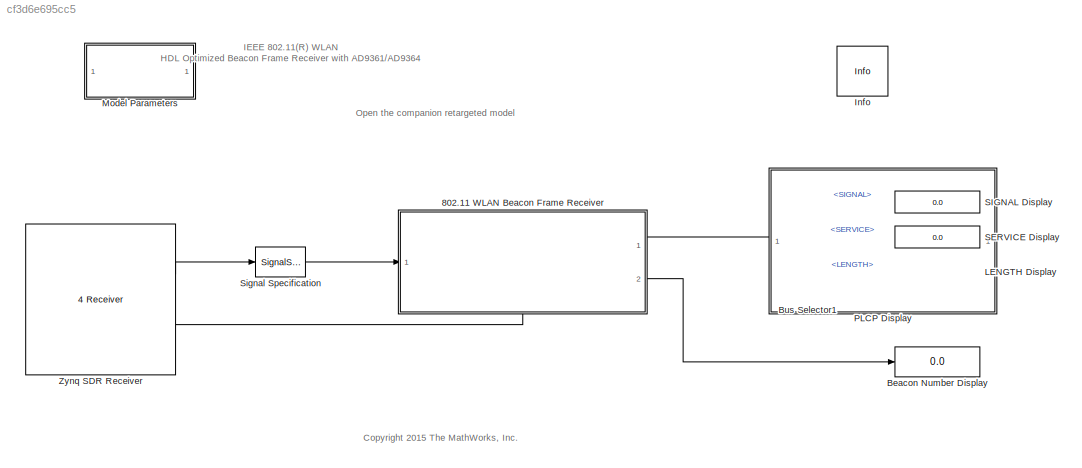
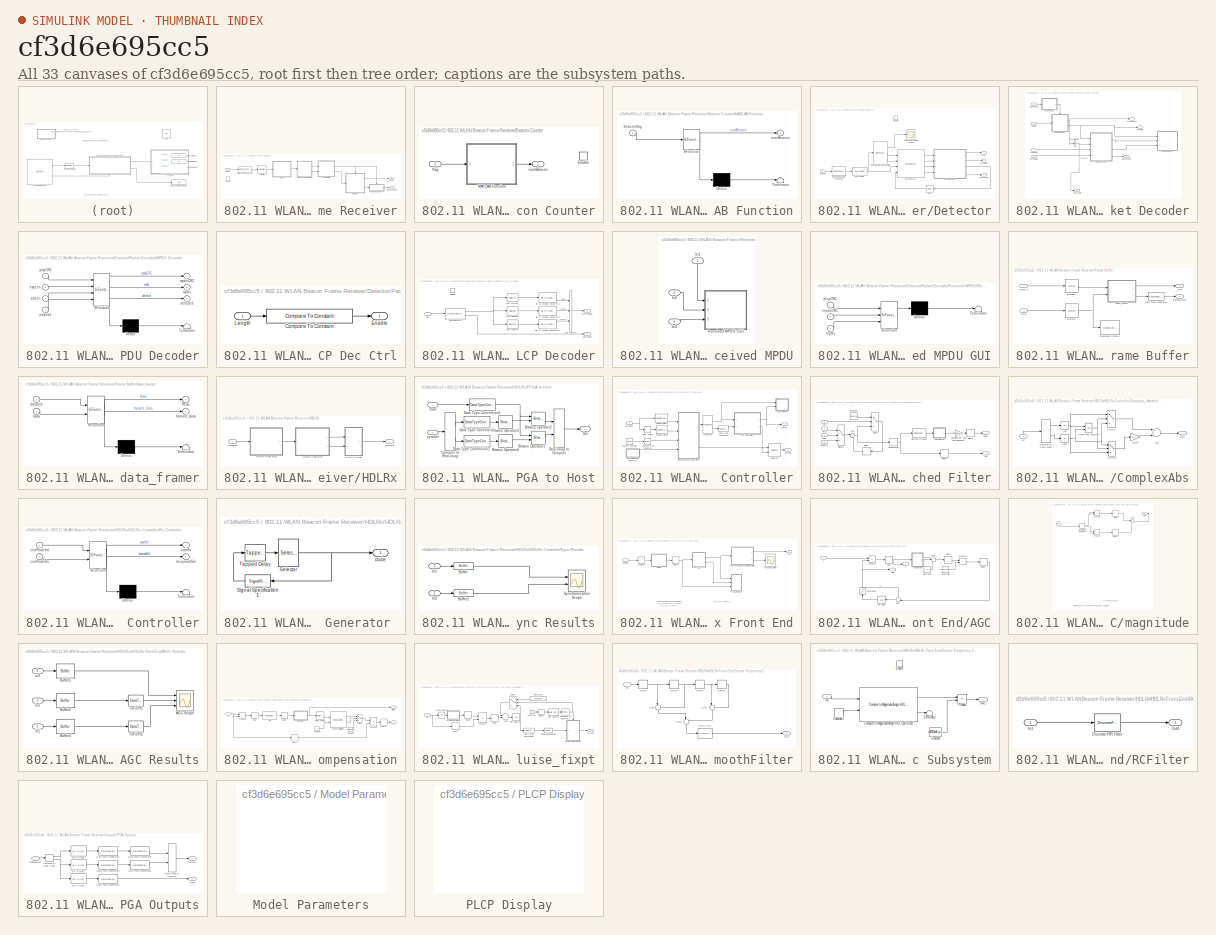
[diagram: thumbnail index - all 33 canvases of the model, root first then tree order]
MODEL slx_cf3d6e695cc5
KIND model
CONFIG AbsTol = auto
CONFIG FixedStep = auto
CONFIG InitFcn = load('commwlan80211BusTypes')\nopenMPDUGUI = true;\nmpduFigPos= [ 100 100 400 500];
CONFIG MaxStep = auto
CONFIG MinStep = auto
CONFIG PostLoadFcn = zynqRadioWLAN80211BeaconRxFPGAAD9361AD9364SL_params('init')\nzynqRadioWLAN80211BeaconRxFPGAAD9361AD9364SL_params('scope')\n
CONFIG PreLoadFcn = load('commwlan80211BusTypes')\nopenMPDUGUI = true;\n
CONFIG RelTol = 1e-3
CONFIG SampleTimeConstraint = Unconstrained
CONFIG Solver = FixedStepDiscrete
CONFIG SolverMode = SingleTasking
CONFIG SolverName = FixedStepDiscrete
CONFIG StartTime = 0.0
CONFIG StopTime = 0.008
WORKSPACE source: external: MAT-File  (data not in archive)
BLOCK [SubSystem] 802.11 WLAN Beacon Frame Receiver
  Ports = [1, 2, 1]
  RequestExecContextInheritance = off
  Variant = off
BLOCK [SubSystem] 802.11 WLAN Beacon Frame Receiver/Beacon Counter
  Ports = [1, 1, 1]
  RequestExecContextInheritance = off
  Variant = off
BLOCK [EnablePort] 802.11 WLAN Beacon Frame Receiver/Beacon Counter/Enable
  Ports = []
BLOCK [SubSystem] 802.11 WLAN Beacon Frame Receiver/Beacon Counter/MATLAB Function
  ErrorFcn = Stateflow.Translate.translate
  PermitHierarchicalResolution = ExplicitOnly
  Ports = [1, 1]
  RequestExecContextInheritance = off
  SFBlockType = MATLAB Function
  TreatAsAtomicUnit = on
  Variant = off
BLOCK [Demux] 802.11 WLAN Beacon Frame Receiver/Beacon Counter/MATLAB Function/ Demux 
  Outputs = 1
  Ports = [1, 1]
BLOCK [S-Function] 802.11 WLAN Beacon Frame Receiver/Beacon Counter/MATLAB Function/ SFunction 
  EnableBusSupport = off
  FunctionName = sf_sfun
  PortCounts = [1 2]
  Ports = [1, 2]
  SFunctionDeploymentMode = off
  Tag = Stateflow S-Function zynqRadioWLAN80211BeaconRxFPGAAD9361AD9364SL 6
BLOCK [Terminator] 802.11 WLAN Beacon Frame Receiver/Beacon Counter/MATLAB Function/ Terminator 
BLOCK [Inport] 802.11 WLAN Beacon Frame Receiver/Beacon Counter/MATLAB Function/beaconflag
  IconDisplay = Port number
BLOCK [Outport] 802.11 WLAN Beacon Frame Receiver/Beacon Counter/MATLAB Function/numBeacon
  IconDisplay = Port number
BLOCK [Inport] 802.11 WLAN Beacon Frame Receiver/Beacon Counter/flag
  IconDisplay = Port number
BLOCK [Outport] 802.11 WLAN Beacon Frame Receiver/Beacon Counter/numBeacon
  IconDisplay = Port number
BLOCK [Outport] 802.11 WLAN Beacon Frame Receiver/BeaconCount
  IconDisplay = Port number
  Port = 2
BLOCK [DataTypeConversion] 802.11 WLAN Beacon Frame Receiver/Data Type Conversion
  ConvertRealWorld = Stored Integer (SI)
  OutDataTypeStr = fixdt(1,16,15)
  RndMeth = Floor
  SaturateOnIntegerOverflow = off
BLOCK [Inport] 802.11 WLAN Beacon Frame Receiver/DataIn
  IconDisplay = Port number
BLOCK [SubSystem] 802.11 WLAN Beacon Frame Receiver/Detector
  CloseFcn = clear BeaconFrameBodyType rcvd
  Ports = [1, 2, 1]
  RequestExecContextInheritance = off
  Variant = off
BLOCK [Outport] 802.11 WLAN Beacon Frame Receiver/Detector/Beacon Flag
  IconDisplay = Port number
  InitialOutput = 1
  Port = 2
BLOCK [Reference] 802.11 WLAN Beacon Frame Receiver/Detector/DBPSK Demodulator Baseband  REF=commdigbbndpm3/DBPSK
Demodulator
Baseband
  Ports = [1, 1]
  SourceBlock = commdigbbndpm3/DBPSK\nDemodulator\nBaseband
  SourceType = DBPSK Demodulator Baseband
BLOCK [Delay] 802.11 WLAN Beacon Frame Receiver/Detector/Delay
  DelayLength = 1
  InitialCondition = 0
  InputPortMap = u0
  InputProcessing = Columns as channels (frame based)
  Ports = [1, 1]
  UserDataPersistent = on
BLOCK [Reference] 802.11 WLAN Beacon Frame Receiver/Detector/Descrambler  REF=commsequence2/Descrambler
  Ports = [1, 1]
  SourceBlock = commsequence2/Descrambler
  SourceType = Descrambler
BLOCK [EnablePort] 802.11 WLAN Beacon Frame Receiver/Detector/Enable
  Ports = []
  PropagateVarSize = During execution
  StatesWhenEnabling = reset
BLOCK [Reference] 802.11 WLAN Beacon Frame Receiver/Detector/Fine Packet Synchronization  REF=commwlan80211BeaconLib/Fine Packet
Synchronization
  Ports = [1, 3]
  SourceBlock = commwlan80211BeaconLib/Fine Packet\nSynchronization
  SourceType = SubSystem
BLOCK [Outport] 802.11 WLAN Beacon Frame Receiver/Detector/PLCP
  IconDisplay = Port number
BLOCK [SubSystem] 802.11 WLAN Beacon Frame Receiver/Detector/Packet Decoder
  Ports = [4, 4]
  RequestExecContextInheritance = off
  Variant = off
BLOCK [Outport] 802.11 WLAN Beacon Frame Receiver/Detector/Packet Decoder/BeaconFlag
  IconDisplay = Port number
  Port = 4
BLOCK [BusSelector] 802.11 WLAN Beacon Frame Receiver/Detector/Packet Decoder/Bus Selector
  OutputSignals = LENGTH
  Ports = [1, 1]
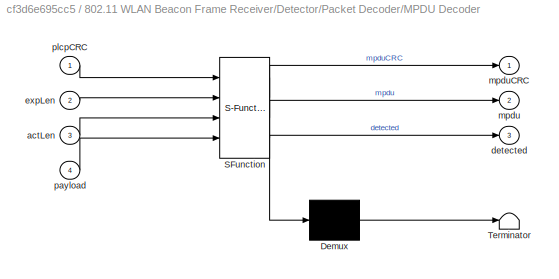
BLOCK [SubSystem] 802.11 WLAN Beacon Frame Receiver/Detector/Packet Decoder/MPDU Decoder
  ErrorFcn = Stateflow.Translate.translate
  PermitHierarchicalResolution = ExplicitOnly
  Ports = [4, 3]
  RequestExecContextInheritance = off
  SFBlockType = MATLAB Function
  TreatAsAtomicUnit = on
  Variant = off
BLOCK [Demux] 802.11 WLAN Beacon Frame Receiver/Detector/Packet Decoder/MPDU Decoder/ Demux 
  Outputs = 1
  Ports = [1, 1]
BLOCK [S-Function] 802.11 WLAN Beacon Frame Receiver/Detector/Packet Decoder/MPDU Decoder/ SFunction 
  EnableBusSupport = off
  FunctionName = sf_sfun
  PortCounts = [4 4]
  Ports = [4, 4]
  SFunctionDeploymentMode = off
  Tag = Stateflow S-Function zynqRadioWLAN80211BeaconRxFPGAAD9361AD9364SL 1
BLOCK [Terminator] 802.11 WLAN Beacon Frame Receiver/Detector/Packet Decoder/MPDU Decoder/ Terminator 
BLOCK [Inport] 802.11 WLAN Beacon Frame Receiver/Detector/Packet Decoder/MPDU Decoder/actLen
  IconDisplay = Port number
  Port = 3
BLOCK [Outport] 802.11 WLAN Beacon Frame Receiver/Detector/Packet Decoder/MPDU Decoder/detected
  IconDisplay = Port number
  Port = 3
BLOCK [Inport] 802.11 WLAN Beacon Frame Receiver/Detector/Packet Decoder/MPDU Decoder/expLen
  IconDisplay = Port number
  Port = 2
BLOCK [Outport] 802.11 WLAN Beacon Frame Receiver/Detector/Packet Decoder/MPDU Decoder/mpdu
  IconDisplay = Port number
  Port = 2
BLOCK [Outport] 802.11 WLAN Beacon Frame Receiver/Detector/Packet Decoder/MPDU Decoder/mpduCRC
  IconDisplay = Port number
BLOCK [Inport] 802.11 WLAN Beacon Frame Receiver/Detector/Packet Decoder/MPDU Decoder/payload
  IconDisplay = Port number
  Port = 4
BLOCK [Inport] 802.11 WLAN Beacon Frame Receiver/Detector/Packet Decoder/MPDU Decoder/plcpCRC
  IconDisplay = Port number
BLOCK [Outport] 802.11 WLAN Beacon Frame Receiver/Detector/Packet Decoder/PLCP CRC
  IconDisplay = Port number
  Port = 2
BLOCK [SubSystem] 802.11 WLAN Beacon Frame Receiver/Detector/Packet Decoder/PLCP Dec Ctrl
  Ports = [1, 1]
  RequestExecContextInheritance = off
  Variant = off
BLOCK [Reference] 802.11 WLAN Beacon Frame Receiver/Detector/Packet Decoder/PLCP Dec Ctrl/Compare To Constant  REF=simulink/Logic and Bit
Operations/Compare
To Constant
  Ports = [1, 1]
  SourceBlock = simulink/Logic and Bit\nOperations/Compare\nTo Constant
  SourceType = Compare To Constant
BLOCK [Outport] 802.11 WLAN Beacon Frame Receiver/Detector/Packet Decoder/PLCP Dec Ctrl/Enable
  IconDisplay = Port number
BLOCK [Inport] 802.11 WLAN Beacon Frame Receiver/Detector/Packet Decoder/PLCP Dec Ctrl/Length
  IconDisplay = Port number
BLOCK [SubSystem] 802.11 WLAN Beacon Frame Receiver/Detector/Packet Decoder/PLCP Decoder
  Ports = [1, 2, 0, 1]
  RequestExecContextInheritance = off
  Variant = off
BLOCK [Reference] 802.11 WLAN Beacon Frame Receiver/Detector/Packet Decoder/PLCP Decoder/Bit to Integer Converter1  REF=commutil2/Bit to Integer
Converter
  Ports = [1, 1]
  SourceBlock = commutil2/Bit to Integer\nConverter
  SourceType = Bit to Integer Converter
BLOCK [Reference] 802.11 WLAN Beacon Frame Receiver/Detector/Packet Decoder/PLCP Decoder/Bit to Integer Converter2  REF=commutil2/Bit to Integer
Converter
  Ports = [1, 1]
  SourceBlock = commutil2/Bit to Integer\nConverter
  SourceType = Bit to Integer Converter
BLOCK [Reference] 802.11 WLAN Beacon Frame Receiver/Detector/Packet Decoder/PLCP Decoder/Bit to Integer Converter3  REF=commutil2/Bit to Integer
Converter
  Ports = [1, 1]
  SourceBlock = commutil2/Bit to Integer\nConverter
  SourceType = Bit to Integer Converter
BLOCK [Inport] 802.11 WLAN Beacon Frame Receiver/Detector/Packet Decoder/PLCP Decoder/Bits
  IconDisplay = Port number
BLOCK [BusCreator] 802.11 WLAN Beacon Frame Receiver/Detector/Packet Decoder/PLCP Decoder/Bus Creator
  DisplayOption = bar
  InheritFromInputs = on
  Inputs = 3
  Ports = [3, 1]
BLOCK [Outport] 802.11 WLAN Beacon Frame Receiver/Detector/Packet Decoder/PLCP Decoder/CRC Check
  IconDisplay = Port number
  Port = 2
BLOCK [Reference] 802.11 WLAN Beacon Frame Receiver/Detector/Packet Decoder/PLCP Decoder/CRC Detector  REF=commcrc2/General CRC
Syndrome
Detector
  Ports = [1, 2]
  SourceBlock = commcrc2/General CRC\nSyndrome\nDetector
  SourceType = General CRC Syndrome Detector
BLOCK [Selector] 802.11 WLAN Beacon Frame Receiver/Detector/Packet Decoder/PLCP Decoder/Get LENGTH
  IndexOptions = Index vector (dialog)
  Indices = 17:32
  InputPortWidth = 32
  OutputSizes = 1
  Ports = [1, 1]
BLOCK [Selector] 802.11 WLAN Beacon Frame Receiver/Detector/Packet Decoder/PLCP Decoder/Get SERVICE
  IndexOptions = Index vector (dialog)
  Indices = 9:16
  InputPortWidth = 32
  OutputSizes = 1
  Ports = [1, 1]
BLOCK [Selector] 802.11 WLAN Beacon Frame Receiver/Detector/Packet Decoder/PLCP Decoder/Get SIGNAL
  IndexOptions = Index vector (dialog)
  Indices = 1:8
  InputPortWidth = 32
  OutputSizes = 1
  Ports = [1, 1]
BLOCK [Outport] 802.11 WLAN Beacon Frame Receiver/Detector/Packet Decoder/PLCP Decoder/PLCP Header
  IconDisplay = Port number
BLOCK [TriggerPort] 802.11 WLAN Beacon Frame Receiver/Detector/Packet Decoder/PLCP Decoder/Trigger
  PortDimensions = 1
  Ports = []
  StatesWhenEnabling = held
  VariantControl = Variant
BLOCK [Outport] 802.11 WLAN Beacon Frame Receiver/Detector/Packet Decoder/PLCP Header
  IconDisplay = Port number
BLOCK [SubSystem] 802.11 WLAN Beacon Frame Receiver/Detector/Packet Decoder/Received MPDU
  Ports = [3]
  RequestExecContextInheritance = off
  Variant = off
BLOCK [Inport] 802.11 WLAN Beacon Frame Receiver/Detector/Packet Decoder/Received MPDU/In1
  IconDisplay = Port number
BLOCK [Inport] 802.11 WLAN Beacon Frame Receiver/Detector/Packet Decoder/Received MPDU/In2
  IconDisplay = Port number
  Port = 2
BLOCK [Inport] 802.11 WLAN Beacon Frame Receiver/Detector/Packet Decoder/Received MPDU/In3
  IconDisplay = Port number
  Port = 3
BLOCK [SubSystem] 802.11 WLAN Beacon Frame Receiver/Detector/Packet Decoder/Received MPDU/Received MPDU GUI
  ErrorFcn = Stateflow.Translate.translate
  PermitHierarchicalResolution = ExplicitOnly
  Ports = [3]
  RequestExecContextInheritance = off
  SFBlockType = MATLAB Function
  TreatAsAtomicUnit = on
  Variant = off
BLOCK [Demux] 802.11 WLAN Beacon Frame Receiver/Detector/Packet Decoder/Received MPDU/Received MPDU GUI/ Demux 
  Outputs = 1
  Ports = [1, 1]
BLOCK [S-Function] 802.11 WLAN Beacon Frame Receiver/Detector/Packet Decoder/Received MPDU/Received MPDU GUI/ SFunction 
  EnableBusSupport = off
  FunctionName = sf_sfun
  Parameters = OpenScopeAtSimStart,figPosition
  PortCounts = [3 1]
  Ports = [3, 1]
  SFunctionDeploymentMode = off
  Tag = Stateflow S-Function zynqRadioWLAN80211BeaconRxFPGAAD9361AD9364SL 2
BLOCK [Terminator] 802.11 WLAN Beacon Frame Receiver/Detector/Packet Decoder/Received MPDU/Received MPDU GUI/ Terminator 
BLOCK [Inport] 802.11 WLAN Beacon Frame Receiver/Detector/Packet Decoder/Received MPDU/Received MPDU GUI/mpdu
  IconDisplay = Port number
  Port = 3
BLOCK [Inport] 802.11 WLAN Beacon Frame Receiver/Detector/Packet Decoder/Received MPDU/Received MPDU GUI/mpduCRC
  IconDisplay = Port number
  Port = 2
BLOCK [Inport] 802.11 WLAN Beacon Frame Receiver/Detector/Packet Decoder/Received MPDU/Received MPDU GUI/plcpCRC
  IconDisplay = Port number
BLOCK [Inport] 802.11 WLAN Beacon Frame Receiver/Detector/Packet Decoder/actLength
  IconDisplay = Port number
  Port = 3
BLOCK [Outport] 802.11 WLAN Beacon Frame Receiver/Detector/Packet Decoder/expLength
  IconDisplay = Port number
  Port = 3
BLOCK [Inport] 802.11 WLAN Beacon Frame Receiver/Detector/Packet Decoder/payloadBits
  IconDisplay = Port number
  Port = 4
BLOCK [Inport] 802.11 WLAN Beacon Frame Receiver/Detector/Packet Decoder/plcpBits
  IconDisplay = Port number
  Port = 2
BLOCK [Inport] 802.11 WLAN Beacon Frame Receiver/Detector/Packet Decoder/plcpLength
  IconDisplay = Port number
BLOCK [Reference] 802.11 WLAN Beacon Frame Receiver/Detector/Packet Parser  REF=commwlan80211BeaconLib/Packet Parser
  Ports = [4, 4]
  SourceBlock = commwlan80211BeaconLib/Packet Parser
  SourceType = SubSystem
BLOCK [Scope] 802.11 WLAN Beacon Frame Receiver/Detector/SFD Synchronization Scope
  DefaultConfigurationName = spbscopes.TimeScopeBlockCfg
  Ports = [1]
  Priority = 10
  ScopeSpecificationString = spbscopes.TimeScopeBlockCfg('CurrentConfiguration', extmgr.ConfigurationSet(extmgr.Configuration('Core','General UI',true),extmgr.Configuration('Core','Source UI',true),extmgr.Configuration('Sources','WiredSimulink',true,'DataLoggingVariableName','ScopeDataSFD'),extmgr.Configuration('Visuals','Time Domain',true,'DisplayPropertyDefaults',struct('MinYLimReal','-17.75','MaxYLimReal','19.75','YLabelRe...<+1500ch>
BLOCK [Inport] 802.11 WLAN Beacon Frame Receiver/Detector/Symbols
  IconDisplay = Port number
BLOCK [Terminator] 802.11 WLAN Beacon Frame Receiver/Detector/Terminator
BLOCK [EnablePort] 802.11 WLAN Beacon Frame Receiver/Enable
  Ports = []
BLOCK [SubSystem] 802.11 WLAN Beacon Frame Receiver/Frame Buffer
  Ports = [2, 2]
  RequestExecContextInheritance = off
  Variant = off
BLOCK [Buffer] 802.11 WLAN Beacon Frame Receiver/Frame Buffer/Buffer1
  N = 128
  OutputFrames = off
  TreatMby1Signals = One channel
BLOCK [Buffer] 802.11 WLAN Beacon Frame Receiver/Frame Buffer/Buffer2
  N = 128
  OutputFrames = off
  TreatMby1Signals = One channel
BLOCK [Inport] 802.11 WLAN Beacon Frame Receiver/Frame Buffer/Data
  IconDisplay = Port number
  Port = 2
BLOCK [DataTypeConversion] 802.11 WLAN Beacon Frame Receiver/Frame Buffer/Data Type Conversion
  RndMeth = Floor
  SaturateOnIntegerOverflow = off
BLOCK [Inport] 802.11 WLAN Beacon Frame Receiver/Frame Buffer/DataVld
  IconDisplay = Port number
BLOCK [Outport] 802.11 WLAN Beacon Frame Receiver/Frame Buffer/Framed Data
  IconDisplay = Port number
  Port = 2
BLOCK [ConstellationDiagram] 802.11 WLAN Beacon Frame Receiver/Frame Buffer/Received Symbols
  Ports = [1]
  Priority = 2
  ScopeSpecificationString = comm.scopes.ConstellationDiagramBlockCfg('CurrentConfiguration', extmgr.ConfigurationSet(extmgr.Configuration('Core','General UI',true),extmgr.Configuration('Core','Source UI',true),extmgr.Configuration('Sources','WiredSimulink',true),extmgr.Configuration('Sources','Simulink',false),extmgr.Configuration('Sources','File',false),extmgr.Configuration('Sources','Workspace',false),extmgr.Configuration(...<+2708ch>
  Tag = ScatterPlot
BLOCK [Outport] 802.11 WLAN Beacon Frame Receiver/Frame Buffer/Start
  IconDisplay = Port number
BLOCK [SubSystem] 802.11 WLAN Beacon Frame Receiver/Frame Buffer/data_framer
  ErrorFcn = Stateflow.Translate.translate
  PermitHierarchicalResolution = ExplicitOnly
  Ports = [2, 2]
  RequestExecContextInheritance = off
  SFBlockType = MATLAB Function
  TreatAsAtomicUnit = on
  Variant = off
BLOCK [Demux] 802.11 WLAN Beacon Frame Receiver/Frame Buffer/data_framer/ Demux 
  Outputs = 1
  Ports = [1, 1]
BLOCK [S-Function] 802.11 WLAN Beacon Frame Receiver/Frame Buffer/data_framer/ SFunction 
  EnableBusSupport = off
  FunctionName = sf_sfun
  Parameters = p80211
  PortCounts = [2 3]
  Ports = [2, 3]
  SFunctionDeploymentMode = off
  Tag = Stateflow S-Function zynqRadioWLAN80211BeaconRxFPGAAD9361AD9364SL 9
BLOCK [Terminator] 802.11 WLAN Beacon Frame Receiver/Frame Buffer/data_framer/ Terminator 
BLOCK [Outport] 802.11 WLAN Beacon Frame Receiver/Frame Buffer/data_framer/RxGo
  IconDisplay = Port number
BLOCK [Inport] 802.11 WLAN Beacon Frame Receiver/Frame Buffer/data_framer/data
  IconDisplay = Port number
  Port = 2
BLOCK [Inport] 802.11 WLAN Beacon Frame Receiver/Frame Buffer/data_framer/datavld
  IconDisplay = Port number
BLOCK [Outport] 802.11 WLAN Beacon Frame Receiver/Frame Buffer/data_framer/framed_data
  IconDisplay = Port number
  Port = 2
BLOCK [SubSystem] 802.11 WLAN Beacon Frame Receiver/HDLRx
  Ports = [1, 1]
  RequestExecContextInheritance = off
  Variant = off
BLOCK [Outport] 802.11 WLAN Beacon Frame Receiver/HDLRx/DataOut
  IconDisplay = Port number
BLOCK [SubSystem] 802.11 WLAN Beacon Frame Receiver/HDLRx/FPGA to Host
  Ports = [2, 1]
  RequestExecContextInheritance = off
  Variant = off
BLOCK [Reference] 802.11 WLAN Beacon Frame Receiver/HDLRx/FPGA to Host/Bitwise Operator1  REF=simulink/Logic and Bit
Operations/Bitwise
Operator
  Ports = [2, 1]
  SourceBlock = simulink/Logic and Bit\nOperations/Bitwise\nOperator
  SourceType = Bitwise Operator
BLOCK [Reference] 802.11 WLAN Beacon Frame Receiver/HDLRx/FPGA to Host/Bitwise Operator2  REF=simulink/Logic and Bit
Operations/Bitwise
Operator
  Ports = [2, 1]
  SourceBlock = simulink/Logic and Bit\nOperations/Bitwise\nOperator
  SourceType = Bitwise Operator
BLOCK [Reference] 802.11 WLAN Beacon Frame Receiver/HDLRx/FPGA to Host/Bitwise Operator3  REF=simulink/Logic and Bit
Operations/Bitwise
Operator
  Ports = [1, 1]
  SourceBlock = simulink/Logic and Bit\nOperations/Bitwise\nOperator
  SourceType = Bitwise Operator
BLOCK [Reference] 802.11 WLAN Beacon Frame Receiver/HDLRx/FPGA to Host/Bitwise Operator4  REF=simulink/Logic and Bit
Operations/Bitwise
Operator
  Ports = [1, 1]
  SourceBlock = simulink/Logic and Bit\nOperations/Bitwise\nOperator
  SourceType = Bitwise Operator
BLOCK [ComplexToRealImag] 802.11 WLAN Beacon Frame Receiver/HDLRx/FPGA to Host/Complex to Real-Imag
  Ports = [1, 2]
BLOCK [DataTypeConversion] 802.11 WLAN Beacon Frame Receiver/HDLRx/FPGA to Host/Data Type Conversion
  ConvertRealWorld = Stored Integer (SI)
  OutDataTypeStr = int16
  RndMeth = Floor
  SaturateOnIntegerOverflow = off
BLOCK [DataTypeConversion] 802.11 WLAN Beacon Frame Receiver/HDLRx/FPGA to Host/Data Type Conversion1
  OutDataTypeStr = int16
  RndMeth = Floor
  SaturateOnIntegerOverflow = off
BLOCK [DataTypeConversion] 802.11 WLAN Beacon Frame Receiver/HDLRx/FPGA to Host/Data Type Conversion2
  ConvertRealWorld = Stored Integer (SI)
  OutDataTypeStr = int16
  RndMeth = Floor
  SaturateOnIntegerOverflow = off
BLOCK [Outport] 802.11 WLAN Beacon Frame Receiver/HDLRx/FPGA to Host/Out
  IconDisplay = Port number
BLOCK [RealImagToComplex] 802.11 WLAN Beacon Frame Receiver/HDLRx/FPGA to Host/Real-Imag to Complex
  Ports = [2, 1]
BLOCK [Inport] 802.11 WLAN Beacon Frame Receiver/HDLRx/FPGA to Host/start
  IconDisplay = Port number
BLOCK [Inport] 802.11 WLAN Beacon Frame Receiver/HDLRx/FPGA to Host/symbol
  IconDisplay = Port number
  Port = 2
BLOCK [SubSystem] 802.11 WLAN Beacon Frame Receiver/HDLRx/HDLRx Controller
  Ports = [1, 2]
  RequestExecContextInheritance = off
  Variant = off
BLOCK [Reference] 802.11 WLAN Beacon Frame Receiver/HDLRx/HDLRx Controller/Compare To Constant  REF=simulink/Logic and Bit
Operations/Compare
To Constant
  Ports = [1, 1]
  SourceBlock = simulink/Logic and Bit\nOperations/Compare\nTo Constant
  SourceType = Compare To Constant
BLOCK [Reference] 802.11 WLAN Beacon Frame Receiver/HDLRx/HDLRx Controller/Counter Limited1  REF=simulink/Sources/Counter
Limited
  Ports = [0, 1]
  SourceBlock = simulink/Sources/Counter\nLimited
  SourceType = Counter Limited
BLOCK [DataTypeConversion] 802.11 WLAN Beacon Frame Receiver/HDLRx/HDLRx Controller/Data Type Conversion
  OutDataTypeStr = uint8
  RndMeth = Floor
  SaturateOnIntegerOverflow = off
BLOCK [SubSystem] 802.11 WLAN Beacon Frame Receiver/HDLRx/HDLRx Controller/Despread_Matched Filter
  Ports = [4, 2]
  RequestExecContextInheritance = off
  Variant = off
BLOCK [SubSystem] 802.11 WLAN Beacon Frame Receiver/HDLRx/HDLRx Controller/Despread_Matched Filter/ComplexAbs
  Ports = [1, 1]
  RequestExecContextInheritance = off
  Variant = off
BLOCK [Abs] 802.11 WLAN Beacon Frame Receiver/HDLRx/HDLRx Controller/Despread_Matched Filter/ComplexAbs/Abs
  SaturateOnIntegerOverflow = off
BLOCK [Abs] 802.11 WLAN Beacon Frame Receiver/HDLRx/HDLRx Controller/Despread_Matched Filter/ComplexAbs/Abs1
  SaturateOnIntegerOverflow = off
BLOCK [Sum] 802.11 WLAN Beacon Frame Receiver/HDLRx/HDLRx Controller/Despread_Matched Filter/ComplexAbs/Add7
  AccumDataTypeStr = fixdt(1,16,2)
  InputSameDT = off
  Ports = [2, 1]
  SaturateOnIntegerOverflow = off
BLOCK [ComplexToRealImag] 802.11 WLAN Beacon Frame Receiver/HDLRx/HDLRx Controller/Despread_Matched Filter/ComplexAbs/Complex to Real-Imag
  Ports = [1, 2]
BLOCK [Gain] 802.11 WLAN Beacon Frame Receiver/HDLRx/HDLRx Controller/Despread_Matched Filter/ComplexAbs/Gain4
  Gain = 0.4
  OutDataTypeStr = fixdt(1,16,3)
  ParamDataTypeStr = Inherit: Inherit via internal rule
  SaturateOnIntegerOverflow = off
BLOCK [Inport] 802.11 WLAN Beacon Frame Receiver/HDLRx/HDLRx Controller/Despread_Matched Filter/ComplexAbs/In1
  IconDisplay = Port number
BLOCK [Outport] 802.11 WLAN Beacon Frame Receiver/HDLRx/HDLRx Controller/Despread_Matched Filter/ComplexAbs/Out1
  IconDisplay = Port number
BLOCK [RelationalOperator] 802.11 WLAN Beacon Frame Receiver/HDLRx/HDLRx Controller/Despread_Matched Filter/ComplexAbs/Relational Operator
  InputSameDT = off
  OutDataTypeStr = boolean
  Ports = [2, 1]
BLOCK [Switch] 802.11 WLAN Beacon Frame Receiver/HDLRx/HDLRx Controller/Despread_Matched Filter/ComplexAbs/Switch
  Criteria = u2 > Threshold
  InputSameDT = off
  SaturateOnIntegerOverflow = off
BLOCK [Switch] 802.11 WLAN Beacon Frame Receiver/HDLRx/HDLRx Controller/Despread_Matched Filter/ComplexAbs/Switch1
  Criteria = u2 > Threshold
  InputSameDT = off
  SaturateOnIntegerOverflow = off
BLOCK [Constant] 802.11 WLAN Beacon Frame Receiver/HDLRx/HDLRx Controller/Despread_Matched Filter/Constant
  OutDataTypeStr = fixdt(1,16,7)
  SampleTime = -1
  Value = complex(0,0)
BLOCK [Delay] 802.11 WLAN Beacon Frame Receiver/HDLRx/HDLRx Controller/Despread_Matched Filter/Delay
  DelayLength = 1
  InitialCondition = 0
  InputPortMap = u0
  Ports = [1, 1]
BLOCK [Delay] 802.11 WLAN Beacon Frame Receiver/HDLRx/HDLRx Controller/Despread_Matched Filter/Delay1
  DelayLength = 1
  InitialCondition = 0
  InputPortMap = u0
  Ports = [1, 1]
BLOCK [Delay] 802.11 WLAN Beacon Frame Receiver/HDLRx/HDLRx Controller/Despread_Matched Filter/Delay2
  DelayLength = p80211.SymbolsPerChannelFrame-2+length(p80211.ScramblerPolynomial)+1
  InitialCondition = 0
  InputPortMap = u0
  Ports = [1, 1]
BLOCK [DiscreteFir] 802.11 WLAN Beacon Frame Receiver/HDLRx/HDLRx Controller/Despread_Matched Filter/Discrete FIR Filter
  AccumDataTypeStr = fixdt(1,16,2)
  CoefDataTypeStr = fixdt(1,4,0)
  Coefficients = fliplr(reshape(p80211hdl.syncsig128,1,128))
  InputPortMap = u0
  OutputPortMap = o0
  Ports = [1, 1]
  ProductDataTypeStr = fixdt(1,16,3)
BLOCK [DownSample] 802.11 WLAN Beacon Frame Receiver/HDLRx/HDLRx Controller/Despread_Matched Filter/Downsample
  InputProcessing = Elements as channels (sample based)
  N = 22
  RateOptions = Allow multirate processing
  UserDataPersistent = on
  phase = 21
BLOCK [Gain] 802.11 WLAN Beacon Frame Receiver/HDLRx/HDLRx Controller/Despread_Matched Filter/Samples Per Chip Normalization1
  Gain = 4/p80211.SamplesPerChip
  ParamDataTypeStr = Inherit: Inherit via internal rule
  SaturateOnIntegerOverflow = off
BLOCK [Sum] 802.11 WLAN Beacon Frame Receiver/HDLRx/HDLRx Controller/Despread_Matched Filter/Sum
  IconShape = round
  InputSameDT = off
  Inputs = |++
  OutDataTypeStr = fixdt(1,16,8)
  Ports = [2, 1]
  RndMeth = Round
BLOCK [Switch] 802.11 WLAN Beacon Frame Receiver/HDLRx/HDLRx Controller/Despread_Matched Filter/Switch
  Criteria = u2 ~= 0
  InputSameDT = off
  SaturateOnIntegerOverflow = off
BLOCK [Switch] 802.11 WLAN Beacon Frame Receiver/HDLRx/HDLRx Controller/Despread_Matched Filter/Switch1
  Criteria = u2 > Threshold
  InputSameDT = off
  SaturateOnIntegerOverflow = off
BLOCK [Inport] 802.11 WLAN Beacon Frame Receiver/HDLRx/HDLRx Controller/Despread_Matched Filter/code
  IconDisplay = Port number
  Port = 4
BLOCK [Inport] 802.11 WLAN Beacon Frame Receiver/HDLRx/HDLRx Controller/Despread_Matched Filter/data
  IconDisplay = Port number
BLOCK [Inport] 802.11 WLAN Beacon Frame Receiver/HDLRx/HDLRx Controller/Despread_Matched Filter/negdata
  IconDisplay = Port number
  Port = 2
BLOCK [Outport] 802.11 WLAN Beacon Frame Receiver/HDLRx/HDLRx Controller/Despread_Matched Filter/peak
  IconDisplay = Port number
BLOCK [Inport] 802.11 WLAN Beacon Frame Receiver/HDLRx/HDLRx Controller/Despread_Matched Filter/sel
  IconDisplay = Port number
  Port = 3
BLOCK [Outport] 802.11 WLAN Beacon Frame Receiver/HDLRx/HDLRx Controller/Despread_Matched Filter/val
  IconDisplay = Port number
  Port = 2
BLOCK [Reference] 802.11 WLAN Beacon Frame Receiver/HDLRx/HDLRx Controller/Maximum  REF=dspstat3/Maximum
  Ports = [1, 2]
  SourceBlock = dspstat3/Maximum
  SourceType = Maximum
  UserDataPersistent = on
BLOCK [SubSystem] 802.11 WLAN Beacon Frame Receiver/HDLRx/HDLRx Controller/Rx Controller
  ErrorFcn = Stateflow.Translate.translate
  PermitHierarchicalResolution = ExplicitOnly
  Ports = [2, 2]
  RequestExecContextInheritance = off
  SFBlockType = MATLAB Function
  TreatAsAtomicUnit = on
  Variant = off
BLOCK [Demux] 802.11 WLAN Beacon Frame Receiver/HDLRx/HDLRx Controller/Rx Controller/ Demux 
  Outputs = 1
  Ports = [1, 1]
BLOCK [S-Function] 802.11 WLAN Beacon Frame Receiver/HDLRx/HDLRx Controller/Rx Controller/ SFunction 
  EnableBusSupport = off
  FunctionName = sf_sfun
  Parameters = p80211,p80211hdl
  PortCounts = [2 3]
  Ports = [2, 3]
  SFunctionDeploymentMode = off
  Tag = Stateflow S-Function zynqRadioWLAN80211BeaconRxFPGAAD9361AD9364SL 8
BLOCK [Terminator] 802.11 WLAN Beacon Frame Receiver/HDLRx/HDLRx Controller/Rx Controller/ Terminator 
BLOCK [Inport] 802.11 WLAN Beacon Frame Receiver/HDLRx/HDLRx Controller/Rx Controller/corrPeakIdx
  IconDisplay = Port number
  Port = 2
BLOCK [Inport] 802.11 WLAN Beacon Frame Receiver/HDLRx/HDLRx Controller/Rx Controller/corrPeakVal
  IconDisplay = Port number
BLOCK [Outport] 802.11 WLAN Beacon Frame Receiver/HDLRx/HDLRx Controller/Rx Controller/despreadSel
  IconDisplay = Port number
  Port = 2
BLOCK [Outport] 802.11 WLAN Beacon Frame Receiver/HDLRx/HDLRx Controller/Rx Controller/startRx
  IconDisplay = Port number
BLOCK [Inport] 802.11 WLAN Beacon Frame Receiver/HDLRx/HDLRx Controller/Rx Signal
  IconDisplay = Port number
BLOCK [Selector] 802.11 WLAN Beacon Frame Receiver/HDLRx/HDLRx Controller/Selector1
  IndexOptions = Index vector (port)
  Indices = [1 3]
  InputPortWidth = 22
  OutputSizes = 1
  Ports = [2, 1]
BLOCK [SubSystem] 802.11 WLAN Beacon Frame Receiver/HDLRx/HDLRx Controller/SpreadingCode Generator 
  Ports = [0, 1]
  RequestExecContextInheritance = off
  Variant = off
BLOCK [Selector] 802.11 WLAN Beacon Frame Receiver/HDLRx/HDLRx Controller/SpreadingCode Generator /Selector
  IndexOptions = Index vector (dialog)
  Indices = 1
  InputPortWidth = 22
  OutputSizes = 1
  Ports = [1, 1]
BLOCK [SignalSpecification] 802.11 WLAN Beacon Frame Receiver/HDLRx/HDLRx Controller/SpreadingCode Generator /Signal Specification1
  OutDataTypeStr = fixdt(1,2,0)
BLOCK [Reference] 802.11 WLAN Beacon Frame Receiver/HDLRx/HDLRx Controller/SpreadingCode Generator /Tapped Delay  REF=simulink/Discrete/Tapped Delay
  Ports = [1, 1]
  SourceBlock = simulink/Discrete/Tapped Delay
  SourceType = Tapped Delay Line
BLOCK [Outport] 802.11 WLAN Beacon Frame Receiver/HDLRx/HDLRx Controller/SpreadingCode Generator /code
  IconDisplay = Port number
BLOCK [Outport] 802.11 WLAN Beacon Frame Receiver/HDLRx/HDLRx Controller/Start
  IconDisplay = Port number
BLOCK [Outport] 802.11 WLAN Beacon Frame Receiver/HDLRx/HDLRx Controller/Symbols
  IconDisplay = Port number
  Port = 2
BLOCK [SubSystem] 802.11 WLAN Beacon Frame Receiver/HDLRx/HDLRx Controller/Sync Results
  Ports = [2]
  RequestExecContextInheritance = off
  Variant = off
BLOCK [Buffer] 802.11 WLAN Beacon Frame Receiver/HDLRx/HDLRx Controller/Sync Results/Buffer
  N = p80211.SamplesPerChannelFrame
  OutputFrames = off
  TreatMby1Signals = One channel
BLOCK [Buffer] 802.11 WLAN Beacon Frame Receiver/HDLRx/HDLRx Controller/Sync Results/Buffer1
  N = 128
  OutputFrames = off
  TreatMby1Signals = One channel
BLOCK [Inport] 802.11 WLAN Beacon Frame Receiver/HDLRx/HDLRx Controller/Sync Results/In1
  IconDisplay = Port number
BLOCK [Inport] 802.11 WLAN Beacon Frame Receiver/HDLRx/HDLRx Controller/Sync Results/In2
  IconDisplay = Port number
  Port = 2
BLOCK [Scope] 802.11 WLAN Beacon Frame Receiver/HDLRx/HDLRx Controller/Sync Results/Synchronization Scope
  DefaultConfigurationName = spbscopes.TimeScopeBlockCfg
  NumInputPorts = 2
  Ports = [2]
  Priority = 1
  ScopeSpecificationString = spbscopes.TimeScopeBlockCfg('CurrentConfiguration', extmgr.ConfigurationSet(extmgr.Configuration('Core','General UI',true),extmgr.Configuration('Core','Source UI',true),extmgr.Configuration('Sources','WiredSimulink',true,'DataLoggingVariableName','ScopeDataSS'),extmgr.Configuration('Visuals','Time Domain',true,'DisplayPropertyDefaults',struct('MinYLimReal','-165.4375','MaxYLimReal','1488.9375','YL...<+1523ch>
BLOCK [Reference] 802.11 WLAN Beacon Frame Receiver/HDLRx/HDLRx Controller/Tapped Delay1  REF=simulink/Discrete/Tapped Delay
  Ports = [1, 1]
  SourceBlock = simulink/Discrete/Tapped Delay
  SourceType = Tapped Delay Line
BLOCK [Reference] 802.11 WLAN Beacon Frame Receiver/HDLRx/HDLRx Controller/Tapped Delay2  REF=simulink/Discrete/Tapped Delay
  Ports = [1, 1]
  SourceBlock = simulink/Discrete/Tapped Delay
  SourceType = Tapped Delay Line
BLOCK [UnaryMinus] 802.11 WLAN Beacon Frame Receiver/HDLRx/HDLRx Controller/Unary Minus
BLOCK [SubSystem] 802.11 WLAN Beacon Frame Receiver/HDLRx/HDLRx Front End
  Ports = [1, 1]
  RequestExecContextInheritance = off
  Variant = off
BLOCK [SubSystem] 802.11 WLAN Beacon Frame Receiver/HDLRx/HDLRx Front End/AGC
  Ports = [1, 2]
  RequestExecContextInheritance = off
  Variant = off
BLOCK [SubSystem] 802.11 WLAN Beacon Frame Receiver/HDLRx/HDLRx Front End/AGC Results
  Ports = [3]
  RequestExecContextInheritance = off
  Variant = off
BLOCK [Scope] 802.11 WLAN Beacon Frame Receiver/HDLRx/HDLRx Front End/AGC Results/AGC Scope
  DefaultConfigurationName = spbscopes.TimeScopeBlockCfg
  NumInputPorts = 3
  Ports = [3]
  ScopeSpecificationString = spbscopes.TimeScopeBlockCfg('CurrentConfiguration', extmgr.ConfigurationSet(extmgr.Configuration('Core','General UI',true),extmgr.Configuration('Core','Source UI',true),extmgr.Configuration('Sources','WiredSimulink',true,'PointsPerSignal',1500000,'DataLoggingVariableName','ScopeDataAGC'),extmgr.Configuration('Visuals','Time Domain',true,'DisplayPropertyDefaults',struct('MinYLimReal','-82.77222','M...<+1547ch>
BLOCK [Buffer] 802.11 WLAN Beacon Frame Receiver/HDLRx/HDLRx Front End/AGC Results/Buffer1
  N = p80211.SamplesPerChannelFrame
  OutputFrames = off
  TreatMby1Signals = One channel
BLOCK [Buffer] 802.11 WLAN Beacon Frame Receiver/HDLRx/HDLRx Front End/AGC Results/Buffer2
  N = p80211.SamplesPerChannelFrame
  OutputFrames = off
  TreatMby1Signals = One channel
BLOCK [Buffer] 802.11 WLAN Beacon Frame Receiver/HDLRx/HDLRx Front End/AGC Results/Buffer3
  N = p80211.SamplesPerChannelFrame
  OutputFrames = off
  TreatMby1Signals = One channel
BLOCK [Inport] 802.11 WLAN Beacon Frame Receiver/HDLRx/HDLRx Front End/AGC Results/In1
  IconDisplay = Port number
BLOCK [Inport] 802.11 WLAN Beacon Frame Receiver/HDLRx/HDLRx Front End/AGC Results/In2
  IconDisplay = Port number
  Port = 2
BLOCK [Inport] 802.11 WLAN Beacon Frame Receiver/HDLRx/HDLRx Front End/AGC Results/In3
  IconDisplay = Port number
  Port = 3
BLOCK [DataTypeConversion] 802.11 WLAN Beacon Frame Receiver/HDLRx/HDLRx Front End/AGC Results/ToFixPt1
  OutDataTypeStr = double
  RndMeth = Floor
  SaturateOnIntegerOverflow = off
BLOCK [DataTypeConversion] 802.11 WLAN Beacon Frame Receiver/HDLRx/HDLRx Front End/AGC Results/ToFixPt2
  OutDataTypeStr = double
  RndMeth = Floor
  SaturateOnIntegerOverflow = off
BLOCK [Delay] 802.11 WLAN Beacon Frame Receiver/HDLRx/HDLRx Front End/AGC/Delay
  InitialCondition = 0
  InputPortMap = u0
  Ports = [1, 1]
BLOCK [Delay] 802.11 WLAN Beacon Frame Receiver/HDLRx/HDLRx Front End/AGC/Delay2
  DelayLength = 1
  InitialCondition = 0
  InputPortMap = u0
  Ports = [1, 1]
BLOCK [Delay] 802.11 WLAN Beacon Frame Receiver/HDLRx/HDLRx Front End/AGC/Delay4
  InitialCondition = 0
  InputPortMap = u0
  Ports = [1, 1]
BLOCK [Constant] 802.11 WLAN Beacon Frame Receiver/HDLRx/HDLRx Front End/AGC/Loop gain
  OutDataTypeStr = fixdt(1,16,12)
  SampleTime = -1
  Value = p80211.AGCStepSize
BLOCK [Product] 802.11 WLAN Beacon Frame Receiver/HDLRx/HDLRx Front End/AGC/Product
  InputSameDT = off
  OutDataTypeStr = fixdt(1,16,10)
  Ports = [2, 1]
  RndMeth = Floor
BLOCK [Product] 802.11 WLAN Beacon Frame Receiver/HDLRx/HDLRx Front End/AGC/Product1
  InputSameDT = off
  OutDataTypeStr = fixdt(1,16,10)
  Ports = [2, 1]
  RndMeth = Floor
BLOCK [Constant] 802.11 WLAN Beacon Frame Receiver/HDLRx/HDLRx Front End/AGC/Reference
  OutDataTypeStr = fixdt(1,16,7)
  SampleTime = -1
BLOCK [Saturate] 802.11 WLAN Beacon Frame Receiver/HDLRx/HDLRx Front End/AGC/Saturation
  InputPortMap = u0
  LowerLimit = 1e-5
  OutDataTypeStr = fixdt(1,16,6)
  Ports = [1, 1]
  UpperLimit = p80211.AGCUpperLimit
BLOCK [Sum] 802.11 WLAN Beacon Frame Receiver/HDLRx/HDLRx Front End/AGC/Sum
  IconShape = round
  InputSameDT = off
  Inputs = ++|
  OutDataTypeStr = fixdt(1,16,6)
  Ports = [2, 1]
BLOCK [Sum] 802.11 WLAN Beacon Frame Receiver/HDLRx/HDLRx Front End/AGC/Sum1
  IconShape = round
  InputSameDT = off
  Inputs = |-+
  Ports = [2, 1]
  SaturateOnIntegerOverflow = off
BLOCK [UnitDelay] 802.11 WLAN Beacon Frame Receiver/HDLRx/HDLRx Front End/AGC/Unit Delay
  InitialCondition = 1
  InputProcessing = Elements as channels (sample based)
  SampleTime = -1
BLOCK [Outport] 802.11 WLAN Beacon Frame Receiver/HDLRx/HDLRx Front End/AGC/gain
  IconDisplay = Port number
  Port = 2
BLOCK [SubSystem] 802.11 WLAN Beacon Frame Receiver/HDLRx/HDLRx Front End/AGC/magnitude
  Ports = [1, 1]
  RequestExecContextInheritance = off
  Variant = off
BLOCK [ComplexToRealImag] 802.11 WLAN Beacon Frame Receiver/HDLRx/HDLRx Front End/AGC/magnitude/Complex to Real-Imag
  Ports = [1, 2]
BLOCK [Delay] 802.11 WLAN Beacon Frame Receiver/HDLRx/HDLRx Front End/AGC/magnitude/Delay
  InitialCondition = 0
  InputPortMap = u0
  Ports = [1, 1]
BLOCK [Delay] 802.11 WLAN Beacon Frame Receiver/HDLRx/HDLRx Front End/AGC/magnitude/Delay1
  InitialCondition = 0
  InputPortMap = u0
  Ports = [1, 1]
BLOCK [Inport] 802.11 WLAN Beacon Frame Receiver/HDLRx/HDLRx Front End/AGC/magnitude/In1
  IconDisplay = Port number
BLOCK [Outport] 802.11 WLAN Beacon Frame Receiver/HDLRx/HDLRx Front End/AGC/magnitude/Out1
  IconDisplay = Port number
BLOCK [Product] 802.11 WLAN Beacon Frame Receiver/HDLRx/HDLRx Front End/AGC/magnitude/Product3
  InputSameDT = off
  OutDataTypeStr = fixdt(1,16,7)
  Ports = [2, 1]
  RndMeth = Floor
BLOCK [Product] 802.11 WLAN Beacon Frame Receiver/HDLRx/HDLRx Front End/AGC/magnitude/Product4
  InputSameDT = off
  OutDataTypeStr = fixdt(1,16,7)
  Ports = [2, 1]
  RndMeth = Floor
BLOCK [Sum] 802.11 WLAN Beacon Frame Receiver/HDLRx/HDLRx Front End/AGC/magnitude/Sum1
  AccumDataTypeStr = Inherit: Same as first input
  IconShape = round
  InputSameDT = off
  Inputs = |++
  OutDataTypeStr = fixdt(1,16,7)
  Ports = [2, 1]
BLOCK [Inport] 802.11 WLAN Beacon Frame Receiver/HDLRx/HDLRx Front End/AGC/x
  IconDisplay = Port number
BLOCK [Outport] 802.11 WLAN Beacon Frame Receiver/HDLRx/HDLRx Front End/AGC/y
  IconDisplay = Port number
  PortDimensions = 1
BLOCK [SubSystem] 802.11 WLAN Beacon Frame Receiver/HDLRx/HDLRx Front End/Coarse Frequency Compensation
  Ports = [1, 2]
  RequestExecContextInheritance = off
  Variant = off
BLOCK [Constant] 802.11 WLAN Beacon Frame Receiver/HDLRx/HDLRx Front End/Coarse Frequency Compensation/Constant
  OutDataTypeStr = boolean
  SampleTime = -1
BLOCK [Constant] 802.11 WLAN Beacon Frame Receiver/HDLRx/HDLRx Front End/Coarse Frequency Compensation/Constant1
  OutDataTypeStr = fixdt(1,16,14)
  SampleTime = -1
  Value = complex(0,0)
BLOCK [Delay] 802.11 WLAN Beacon Frame Receiver/HDLRx/HDLRx Front End/Coarse Frequency Compensation/Delay
  DelayLength = 4
  InitialCondition = 0
  InputPortMap = u0
  Ports = [1, 1]
BLOCK [Delay] 802.11 WLAN Beacon Frame Receiver/HDLRx/HDLRx Front End/Coarse Frequency Compensation/Delay1
  DelayLength = 4+11*44
  InitialCondition = 0
  InputPortMap = u0
  Ports = [1, 1]
BLOCK [Delay] 802.11 WLAN Beacon Frame Receiver/HDLRx/HDLRx Front End/Coarse Frequency Compensation/Delay3
  DelayLength = 4
  InitialCondition = 0
  InputPortMap = u0
  Ports = [1, 1]
BLOCK [Delay] 802.11 WLAN Beacon Frame Receiver/HDLRx/HDLRx Front End/Coarse Frequency Compensation/Delay4
  DelayLength = 1
  InitialCondition = 0
  InputPortMap = u0
  Ports = [1, 1]
BLOCK [Reference] 802.11 WLAN Beacon Frame Receiver/HDLRx/HDLRx Front End/Coarse Frequency Compensation/Hlp  REF=dspmlti4/FIR
Decimation
  Ports = [1, 1]
  SourceBlock = dspmlti4/FIR\nDecimation
  SourceType = FIR Decimation
  Tag = BlockMethodSubSystem
  UserDataPersistent = on
BLOCK [Reference] 802.11 WLAN Beacon Frame Receiver/HDLRx/HDLRx Front End/Coarse Frequency Compensation/NCO HDL Optimized  REF=dspsigops/NCO
HDL Optimized
  Ports = [2, 2]
  SourceBlock = dspsigops/NCO\nHDL Optimized
  SourceType = NCO HDL Optimized
BLOCK [Product] 802.11 WLAN Beacon Frame Receiver/HDLRx/HDLRx Front End/Coarse Frequency Compensation/Product1
  InputSameDT = off
  OutDataTypeStr = fixdt(1,16,6)
  Ports = [2, 1]
  SaturateOnIntegerOverflow = off
BLOCK [Product] 802.11 WLAN Beacon Frame Receiver/HDLRx/HDLRx Front End/Coarse Frequency Compensation/Product2
  InputSameDT = off
  OutDataTypeStr = fixdt(1,16,10)
  Ports = [2, 1]
  RndMeth = Floor
BLOCK [RateTransition] 802.11 WLAN Beacon Frame Receiver/HDLRx/HDLRx Front End/Coarse Frequency Compensation/Rate Transition1
BLOCK [Switch] 802.11 WLAN Beacon Frame Receiver/HDLRx/HDLRx Front End/Coarse Frequency Compensation/Switch
  Criteria = u2 ~= 0
  InputSameDT = off
  SaturateOnIntegerOverflow = off
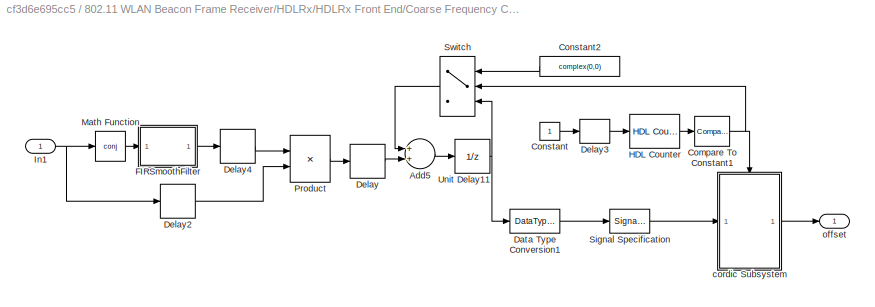
BLOCK [SubSystem] 802.11 WLAN Beacon Frame Receiver/HDLRx/HDLRx Front End/Coarse Frequency Compensation/luise_fixpt
  Ports = [1, 1]
  RequestExecContextInheritance = off
  Variant = off
BLOCK [Sum] 802.11 WLAN Beacon Frame Receiver/HDLRx/HDLRx Front End/Coarse Frequency Compensation/luise_fixpt/Add5
  InputSameDT = off
  OutDataTypeStr = fixdt(1,p80211hdl.car_WL,p80211hdl.car_FL)
  Ports = [2, 1]
  RndMeth = Nearest
BLOCK [Reference] 802.11 WLAN Beacon Frame Receiver/HDLRx/HDLRx Front End/Coarse Frequency Compensation/luise_fixpt/Compare To Constant1  REF=simulink/Logic and Bit
Operations/Compare
To Constant
  Ports = [1, 1]
  SourceBlock = simulink/Logic and Bit\nOperations/Compare\nTo Constant
  SourceType = Compare To Constant
BLOCK [Constant] 802.11 WLAN Beacon Frame Receiver/HDLRx/HDLRx Front End/Coarse Frequency Compensation/luise_fixpt/Constant
  OutDataTypeStr = boolean
  SampleTime = -1
BLOCK [Constant] 802.11 WLAN Beacon Frame Receiver/HDLRx/HDLRx Front End/Coarse Frequency Compensation/luise_fixpt/Constant2
  OutDataTypeStr = fixdt(1,p80211hdl.car_WL,p80211hdl.car_FL)
  SampleTime = -1
  Value = complex(0,0)
  VectorParams1D = off
BLOCK [DataTypeConversion] 802.11 WLAN Beacon Frame Receiver/HDLRx/HDLRx Front End/Coarse Frequency Compensation/luise_fixpt/Data Type Conversion1
  OutDataTypeStr = fixdt(1,p80211hdl.car_WL,p80211hdl.car_FL)
  RndMeth = Nearest
BLOCK [Delay] 802.11 WLAN Beacon Frame Receiver/HDLRx/HDLRx Front End/Coarse Frequency Compensation/luise_fixpt/Delay
  InitialCondition = 0
  InputPortMap = u0
  Ports = [1, 1]
BLOCK [Delay] 802.11 WLAN Beacon Frame Receiver/HDLRx/HDLRx Front End/Coarse Frequency Compensation/luise_fixpt/Delay2
  DelayLength = 1
  InitialCondition = 0
  InputPortMap = u0
  Ports = [1, 1]
BLOCK [Delay] 802.11 WLAN Beacon Frame Receiver/HDLRx/HDLRx Front End/Coarse Frequency Compensation/luise_fixpt/Delay3
  DelayLength = 4
  InitialCondition = 0
  InputPortMap = u0
  Ports = [1, 1]
BLOCK [Delay] 802.11 WLAN Beacon Frame Receiver/HDLRx/HDLRx Front End/Coarse Frequency Compensation/luise_fixpt/Delay4
  DelayLength = 1
  InitialCondition = 0
  InputPortMap = u0
  Ports = [1, 1]
BLOCK [SubSystem] 802.11 WLAN Beacon Frame Receiver/HDLRx/HDLRx Front End/Coarse Frequency Compensation/luise_fixpt/FIRSmoothFilter
  Ports = [1, 1]
  RequestExecContextInheritance = off
  Variant = off
BLOCK [Delay] 802.11 WLAN Beacon Frame Receiver/HDLRx/HDLRx Front End/Coarse Frequency Compensation/luise_fixpt/FIRSmoothFilter/Delay
  DelayLength = 1
  InitialCondition = 0
  InputPortMap = u0
  Ports = [1, 1]
BLOCK [Delay] 802.11 WLAN Beacon Frame Receiver/HDLRx/HDLRx Front End/Coarse Frequency Compensation/luise_fixpt/FIRSmoothFilter/Delay1
  DelayLength = 1
  InitialCondition = 0
  InputPortMap = u0
  Ports = [1, 1]
BLOCK [Delay] 802.11 WLAN Beacon Frame Receiver/HDLRx/HDLRx Front End/Coarse Frequency Compensation/luise_fixpt/FIRSmoothFilter/Delay2
  DelayLength = 1
  InitialCondition = 0
  InputPortMap = u0
  Ports = [1, 1]
BLOCK [Delay] 802.11 WLAN Beacon Frame Receiver/HDLRx/HDLRx Front End/Coarse Frequency Compensation/luise_fixpt/FIRSmoothFilter/Delay3
  DelayLength = 1
  InitialCondition = 0
  InputPortMap = u0
  Ports = [1, 1]
BLOCK [Inport] 802.11 WLAN Beacon Frame Receiver/HDLRx/HDLRx Front End/Coarse Frequency Compensation/luise_fixpt/FIRSmoothFilter/In1
  IconDisplay = Port number
BLOCK [Outport] 802.11 WLAN Beacon Frame Receiver/HDLRx/HDLRx Front End/Coarse Frequency Compensation/luise_fixpt/FIRSmoothFilter/Out2
  IconDisplay = Port number
BLOCK [ArithShift] 802.11 WLAN Beacon Frame Receiver/HDLRx/HDLRx Front End/Coarse Frequency Compensation/luise_fixpt/FIRSmoothFilter/ShiftArith
  BitShiftDirection = Right
  BitShiftNumber = 6
  InputPortMap = u0
  Ports = [1, 1]
BLOCK [Sum] 802.11 WLAN Beacon Frame Receiver/HDLRx/HDLRx Front End/Coarse Frequency Compensation/luise_fixpt/FIRSmoothFilter/Sum
  IconShape = round
  InputSameDT = off
  Inputs = |++
  OutDataTypeStr = fixdt(1,16,5)
  Ports = [2, 1]
BLOCK [Sum] 802.11 WLAN Beacon Frame Receiver/HDLRx/HDLRx Front End/Coarse Frequency Compensation/luise_fixpt/FIRSmoothFilter/Sum1
  IconShape = round
  InputSameDT = off
  Inputs = |++
  OutDataTypeStr = fixdt(1,16,5)
  Ports = [2, 1]
BLOCK [Sum] 802.11 WLAN Beacon Frame Receiver/HDLRx/HDLRx Front End/Coarse Frequency Compensation/luise_fixpt/FIRSmoothFilter/Sum2
  IconShape = round
  InputSameDT = off
  Inputs = |++
  OutDataTypeStr = fixdt(1,16,4)
  Ports = [2, 1]
BLOCK [Reference] 802.11 WLAN Beacon Frame Receiver/HDLRx/HDLRx Front End/Coarse Frequency Compensation/luise_fixpt/HDL Counter  REF=hdlsllib/HDL Operations/HDL Counter
  Ports = [1, 1]
  SourceBlock = hdlsllib/HDL Operations/HDL Counter
  SourceType = HDL Counter
BLOCK [Inport] 802.11 WLAN Beacon Frame Receiver/HDLRx/HDLRx Front End/Coarse Frequency Compensation/luise_fixpt/In1
  IconDisplay = Port number
BLOCK [Math] 802.11 WLAN Beacon Frame Receiver/HDLRx/HDLRx Front End/Coarse Frequency Compensation/luise_fixpt/Math Function
  Operator = conj
  Ports = [1, 1]
BLOCK [Product] 802.11 WLAN Beacon Frame Receiver/HDLRx/HDLRx Front End/Coarse Frequency Compensation/luise_fixpt/Product
  InputSameDT = off
  OutDataTypeStr = fixdt(1,p80211hdl.car_WL,p80211hdl.car_FL)
  Ports = [2, 1]
  RndMeth = Nearest
BLOCK [SignalSpecification] 802.11 WLAN Beacon Frame Receiver/HDLRx/HDLRx Front End/Coarse Frequency Compensation/luise_fixpt/Signal Specification
  Dimensions = 1
BLOCK [Switch] 802.11 WLAN Beacon Frame Receiver/HDLRx/HDLRx Front End/Coarse Frequency Compensation/luise_fixpt/Switch
  Criteria = u2 > Threshold
  InputSameDT = off
  SaturateOnIntegerOverflow = off
BLOCK [UnitDelay] 802.11 WLAN Beacon Frame Receiver/HDLRx/HDLRx Front End/Coarse Frequency Compensation/luise_fixpt/Unit Delay11
  InputProcessing = Elements as channels (sample based)
  SampleTime = -1
BLOCK [SubSystem] 802.11 WLAN Beacon Frame Receiver/HDLRx/HDLRx Front End/Coarse Frequency Compensation/luise_fixpt/cordic Subsystem
  Ports = [1, 1, 1]
  RequestExecContextInheritance = off
  TreatAsAtomicUnit = on
  Variant = off
BLOCK [Reference] 802.11 WLAN Beacon Frame Receiver/HDLRx/HDLRx Front End/Coarse Frequency Compensation/luise_fixpt/cordic Subsystem/Complex to Magnitude-Angle HDL Optimized  REF=dspmathops/Complex to Magnitude-Angle
HDL Optimized
  Ports = [2, 2]
  SourceBlock = dspmathops/Complex to Magnitude-Angle\nHDL Optimized
  SourceType = Complex to Magnitude-Angle HDL Optimized
BLOCK [Constant] 802.11 WLAN Beacon Frame Receiver/HDLRx/HDLRx Front End/Coarse Frequency Compensation/luise_fixpt/cordic Subsystem/Constant
  OutDataTypeStr = uint16
  SampleTime = -1
  Value = p80211hdl.pInc_const
BLOCK [Constant] 802.11 WLAN Beacon Frame Receiver/HDLRx/HDLRx Front End/Coarse Frequency Compensation/luise_fixpt/cordic Subsystem/Constant1
  OutDataTypeStr = boolean
  SampleTime = -1
BLOCK [EnablePort] 802.11 WLAN Beacon Frame Receiver/HDLRx/HDLRx Front End/Coarse Frequency Compensation/luise_fixpt/cordic Subsystem/Enable
  Ports = []
BLOCK [Inport] 802.11 WLAN Beacon Frame Receiver/HDLRx/HDLRx Front End/Coarse Frequency Compensation/luise_fixpt/cordic Subsystem/In1
  IconDisplay = Port number
BLOCK [Outport] 802.11 WLAN Beacon Frame Receiver/HDLRx/HDLRx Front End/Coarse Frequency Compensation/luise_fixpt/cordic Subsystem/Out1
  IconDisplay = Port number
  InitialOutput = 0
BLOCK [Product] 802.11 WLAN Beacon Frame Receiver/HDLRx/HDLRx Front End/Coarse Frequency Compensation/luise_fixpt/cordic Subsystem/Product
  InputSameDT = off
  OutDataTypeStr = int16
  Ports = [2, 1]
  RndMeth = Floor
  SaturateOnIntegerOverflow = off
BLOCK [Terminator] 802.11 WLAN Beacon Frame Receiver/HDLRx/HDLRx Front End/Coarse Frequency Compensation/luise_fixpt/cordic Subsystem/Terminator
BLOCK [Outport] 802.11 WLAN Beacon Frame Receiver/HDLRx/HDLRx Front End/Coarse Frequency Compensation/luise_fixpt/offset
  IconDisplay = Port number
  PortDimensions = 1
BLOCK [Outport] 802.11 WLAN Beacon Frame Receiver/HDLRx/HDLRx Front End/Coarse Frequency Compensation/offset
  IconDisplay = Port number
  Port = 2
BLOCK [Inport] 802.11 WLAN Beacon Frame Receiver/HDLRx/HDLRx Front End/Coarse Frequency Compensation/x
  IconDisplay = Port number
  PortDimensions = 1
BLOCK [Outport] 802.11 WLAN Beacon Frame Receiver/HDLRx/HDLRx Front End/Coarse Frequency Compensation/y
  IconDisplay = Port number
BLOCK [Delay] 802.11 WLAN Beacon Frame Receiver/HDLRx/HDLRx Front End/Delay3
  DelayLength = 1
  InitialCondition = 0
  InputPortMap = u0
  Ports = [1, 1]
BLOCK [Scope] 802.11 WLAN Beacon Frame Receiver/HDLRx/HDLRx Front End/Frequency Offset
  DefaultConfigurationName = spbscopes.TimeScopeBlockCfg
  Ports = [1]
  ScopeSpecificationString = spbscopes.TimeScopeBlockCfg('CurrentConfiguration', extmgr.ConfigurationSet(extmgr.Configuration('Core','General UI',true),extmgr.Configuration('Core','Source UI',true),extmgr.Configuration('Sources','WiredSimulink',true,'DataLoggingVariableName','ScopeDataEFO'),extmgr.Configuration('Visuals','Time Domain',true,'DisplayPropertyDefaults',struct('MinYLimReal','-40002.00000','MaxYLimReal','38258.0000...<+1541ch>
BLOCK [Delay] 802.11 WLAN Beacon Frame Receiver/HDLRx/HDLRx Front End/Inputreg
  DelayLength = 1
  InitialCondition = 0
  InputPortMap = u0
  Ports = [1, 1]
BLOCK [SubSystem] 802.11 WLAN Beacon Frame Receiver/HDLRx/HDLRx Front End/RCFilter
  Ports = [1, 1]
  RequestExecContextInheritance = off
  Variant = off
BLOCK [DiscreteFir] 802.11 WLAN Beacon Frame Receiver/HDLRx/HDLRx Front End/RCFilter/Discrete FIR Filter
  AccumDataTypeStr = fixdt(1,32,29)
  CoefDataTypeStr = fixdt(1,16,15)
  Coefficients = [0.0084136487845067817 -0.0012779096107435872 -0.023416382101133094 0.031830988618379061 0.040020036765270169 -0.10861435786336783 -0.053034100250923456 0.43511459293103077 0.76506964167771518 0.43511459293103077 -0.053034100250923456 -0.10861435786336783 0.040020036765270169 0.031830988618379061 -0.023416382101133094 -0.0012779096107435872 0.0084136487845067817]
  FilterStructure = Direct form transposed
  InputPortMap = u0
  OutDataTypeStr = fixdt(1,16,15)
  OutputPortMap = o0
  Ports = [1, 1]
  ProductDataTypeStr = fixdt(1,32,30)
BLOCK [Inport] 802.11 WLAN Beacon Frame Receiver/HDLRx/HDLRx Front End/RCFilter/In1
  IconDisplay = Port number
BLOCK [Outport] 802.11 WLAN Beacon Frame Receiver/HDLRx/HDLRx Front End/RCFilter/Out1
  IconDisplay = Port number
BLOCK [Inport] 802.11 WLAN Beacon Frame Receiver/HDLRx/HDLRx Front End/Samples
  IconDisplay = Port number
BLOCK [Outport] 802.11 WLAN Beacon Frame Receiver/HDLRx/HDLRx Front End/rcvd
  IconDisplay = Port number
BLOCK [Inport] 802.11 WLAN Beacon Frame Receiver/HDLRx/Samples
  IconDisplay = Port number
BLOCK [Outport] 802.11 WLAN Beacon Frame Receiver/PLCP
  IconDisplay = Port number
BLOCK [Unbuffer] 802.11 WLAN Beacon Frame Receiver/Unbuffer
  Ports = [1, 1]
  SampleBasedProcessing = Same as frame based
BLOCK [SubSystem] 802.11 WLAN Beacon Frame Receiver/Unpack FPGA Outputs
  Ports = [1, 2]
  RequestExecContextInheritance = off
  Variant = off
BLOCK [Reference] 802.11 WLAN Beacon Frame Receiver/Unpack FPGA Outputs/Bit Slice1  REF=hdlsllib/HDL Operations/Bit Slice
  Ports = [1, 1]
  SourceBlock = hdlsllib/HDL Operations/Bit Slice
  SourceType = Bit Slice
BLOCK [Reference] 802.11 WLAN Beacon Frame Receiver/Unpack FPGA Outputs/Bit Slice2  REF=hdlsllib/HDL Operations/Bit Slice
  Ports = [1, 1]
  SourceBlock = hdlsllib/HDL Operations/Bit Slice
  SourceType = Bit Slice
BLOCK [Reference] 802.11 WLAN Beacon Frame Receiver/Unpack FPGA Outputs/Bit Slice3  REF=hdlsllib/HDL Operations/Bit Slice
  Ports = [1, 1]
  SourceBlock = hdlsllib/HDL Operations/Bit Slice
  SourceType = Bit Slice
BLOCK [ComplexToRealImag] 802.11 WLAN Beacon Frame Receiver/Unpack FPGA Outputs/Complex to Real-Imag
  Ports = [1, 2]
BLOCK [DataTypeConversion] 802.11 WLAN Beacon Frame Receiver/Unpack FPGA Outputs/Data Type Conversion1
  ConvertRealWorld = Stored Integer (SI)
  OutDataTypeStr = fixdt(1,15,9)
  RndMeth = Floor
  SaturateOnIntegerOverflow = off
BLOCK [DataTypeConversion] 802.11 WLAN Beacon Frame Receiver/Unpack FPGA Outputs/Data Type Conversion2
  OutDataTypeStr = boolean
  RndMeth = Floor
  SaturateOnIntegerOverflow = off
BLOCK [DataTypeConversion] 802.11 WLAN Beacon Frame Receiver/Unpack FPGA Outputs/Data Type Conversion3
  ConvertRealWorld = Stored Integer (SI)
  OutDataTypeStr = fixdt(1,15,9)
  RndMeth = Floor
  SaturateOnIntegerOverflow = off
BLOCK [DataTypeConversion] 802.11 WLAN Beacon Frame Receiver/Unpack FPGA Outputs/Data Type Conversion4
  OutDataTypeStr = fixdt(1,16,10)
  RndMeth = Floor
  SaturateOnIntegerOverflow = off
BLOCK [DataTypeConversion] 802.11 WLAN Beacon Frame Receiver/Unpack FPGA Outputs/Data Type Conversion5
  OutDataTypeStr = fixdt(1,16,10)
  RndMeth = Floor
  SaturateOnIntegerOverflow = off
BLOCK [Inport] 802.11 WLAN Beacon Frame Receiver/Unpack FPGA Outputs/PackedData
  IconDisplay = Port number
BLOCK [RealImagToComplex] 802.11 WLAN Beacon Frame Receiver/Unpack FPGA Outputs/Real-Imag to Complex
  Ports = [2, 1]
BLOCK [Outport] 802.11 WLAN Beacon Frame Receiver/Unpack FPGA Outputs/start
  IconDisplay = Port number
BLOCK [Outport] 802.11 WLAN Beacon Frame Receiver/Unpack FPGA Outputs/symbols
  IconDisplay = Port number
  Port = 2
BLOCK [Display] Beacon Number Display
  Decimation = 1
  Ports = [1]
BLOCK [BusSelector] Bus Selector1
  OutputSignals = SIGNAL,SERVICE,LENGTH
  Ports = [1, 3]
BLOCK [Reference] Info  REF=sdrzblksprivate/Info
  Ports = []
  SourceBlock = sdrzblksprivate/Info
  SourceType = Info
BLOCK [Display] LENGTH Display
  Decimation = 1
  Ports = [1]
BLOCK [SubSystem] Model Parameters
  Ports = []
  RequestExecContextInheritance = off
  Variant = off
BLOCK [SubSystem] PLCP Display
  Ports = []
  RequestExecContextInheritance = off
  Variant = off
BLOCK [Display] SERVICE Display
  Decimation = 1
  Format = hex (Stored Integer)
  Ports = [1]
BLOCK [Display] SIGNAL Display
  Decimation = 1
  Format = hex (Stored Integer)
  Ports = [1]
BLOCK [SignalSpecification] Signal Specification
  SampleTime = p80211.RadioFrameLength/p80211.RadioBasebandRate
BLOCK [Reference] Zynq SDR Receiver  REF=zc706fmc234_lib/ZC706 and 
FMCOMMS2//3//4 
Receiver
  Ports = [0, 2]
  SourceBlock = zc706fmc234_lib/ZC706 and \nFMCOMMS2//3//4 \nReceiver
  SourceType = comm.internal.SDRRxZC706FMC234SL
ANNOTATION (root): IEEE 802.11(R) WLAN HDL Optimized Beacon Frame Receiver with AD9361/AD9364
ANNOTATION (root): <copyright redacted>
ANNOTATION (root): Open the companion retargeted model
ANNOTATION 802.11 WLAN Beacon Frame Receiver/HDLRx/HDLRx Front End: AGC implements the square law method: e(n) = R - abs(x(n))^2; % R = 1; g(n) = g(n-1) + K*e(n);
ANNOTATION 802.11 WLAN Beacon Frame Receiver/HDLRx/HDLRx Front End: |U|^2 = re(u)^2+im(u)^2
ANNOTATION 802.11 WLAN Beacon Frame Receiver/HDLRx/HDLRx Front End/AGC/magnitude: Frrekin book pp238
ANNOTATION 802.11 WLAN Beacon Frame Receiver/HDLRx/HDLRx Front End/AGC/magnitude: http://www.dspguru.com/dsp/tricks/magnitude-estimator
LINE 802.11 WLAN Beacon Frame Receiver/Beacon Counter/MATLAB Function:1 -> 802.11 WLAN Beacon Frame Receiver/Beacon Counter/numBeacon:1
LINE 802.11 WLAN Beacon Frame Receiver/Beacon Counter/flag:1 -> 802.11 WLAN Beacon Frame Receiver/Beacon Counter/MATLAB Function:1
LINE 802.11 WLAN Beacon Frame Receiver/Beacon Counter:1 -> 802.11 WLAN Beacon Frame Receiver/BeaconCount:1
LINE 802.11 WLAN Beacon Frame Receiver/Data Type Conversion:1 -> 802.11 WLAN Beacon Frame Receiver/Unbuffer:1
LINE 802.11 WLAN Beacon Frame Receiver/DataIn:1 -> 802.11 WLAN Beacon Frame Receiver/Data Type Conversion:1
LINE 802.11 WLAN Beacon Frame Receiver/Detector/DBPSK Demodulator Baseband:1 -> 802.11 WLAN Beacon Frame Receiver/Detector/Descrambler:1
LINE 802.11 WLAN Beacon Frame Receiver/Detector/Delay:1 -> 802.11 WLAN Beacon Frame Receiver/Detector/Packet Parser:4
NET 802.11 WLAN Beacon Frame Receiver/Detector/Descrambler:1 -> 802.11 WLAN Beacon Frame Receiver/Detector/Fine Packet Synchronization:1, 802.11 WLAN Beacon Frame Receiver/Detector/Packet Parser:3
LINE 802.11 WLAN Beacon Frame Receiver/Detector/Fine Packet Synchronization:1 -> 802.11 WLAN Beacon Frame Receiver/Detector/SFD Synchronization Scope:1
LINE 802.11 WLAN Beacon Frame Receiver/Detector/Fine Packet Synchronization:2 -> 802.11 WLAN Beacon Frame Receiver/Detector/Packet Parser:1
LINE 802.11 WLAN Beacon Frame Receiver/Detector/Fine Packet Synchronization:3 -> 802.11 WLAN Beacon Frame Receiver/Detector/Packet Parser:2
NET 802.11 WLAN Beacon Frame Receiver/Detector/Packet Decoder/Bus Selector:1 -> 802.11 WLAN Beacon Frame Receiver/Detector/Packet Decoder/MPDU Decoder:2, 802.11 WLAN Beacon Frame Receiver/Detector/Packet Decoder/expLength:1
LINE 802.11 WLAN Beacon Frame Receiver/Detector/Packet Decoder/MPDU Decoder:1 -> 802.11 WLAN Beacon Frame Receiver/Detector/Packet Decoder/Received MPDU:2
LINE 802.11 WLAN Beacon Frame Receiver/Detector/Packet Decoder/MPDU Decoder:2 -> 802.11 WLAN Beacon Frame Receiver/Detector/Packet Decoder/Received MPDU:3
LINE 802.11 WLAN Beacon Frame Receiver/Detector/Packet Decoder/MPDU Decoder:3 -> 802.11 WLAN Beacon Frame Receiver/Detector/Packet Decoder/BeaconFlag:1
LINE 802.11 WLAN Beacon Frame Receiver/Detector/Packet Decoder/PLCP Dec Ctrl/Compare To Constant:1 -> 802.11 WLAN Beacon Frame Receiver/Detector/Packet Decoder/PLCP Dec Ctrl/Enable:1
LINE 802.11 WLAN Beacon Frame Receiver/Detector/Packet Decoder/PLCP Dec Ctrl/Length:1 -> 802.11 WLAN Beacon Frame Receiver/Detector/Packet Decoder/PLCP Dec Ctrl/Compare To Constant:1
LINE 802.11 WLAN Beacon Frame Receiver/Detector/Packet Decoder/PLCP Dec Ctrl:1 -> 802.11 WLAN Beacon Frame Receiver/Detector/Packet Decoder/PLCP Decoder:trigger
LINE 802.11 WLAN Beacon Frame Receiver/Detector/Packet Decoder/PLCP Decoder/Bit to Integer Converter1:1 -> 802.11 WLAN Beacon Frame Receiver/Detector/Packet Decoder/PLCP Decoder/Bus Creator:1
LINE 802.11 WLAN Beacon Frame Receiver/Detector/Packet Decoder/PLCP Decoder/Bit to Integer Converter2:1 -> 802.11 WLAN Beacon Frame Receiver/Detector/Packet Decoder/PLCP Decoder/Bus Creator:2
LINE 802.11 WLAN Beacon Frame Receiver/Detector/Packet Decoder/PLCP Decoder/Bit to Integer Converter3:1 -> 802.11 WLAN Beacon Frame Receiver/Detector/Packet Decoder/PLCP Decoder/Bus Creator:3
LINE 802.11 WLAN Beacon Frame Receiver/Detector/Packet Decoder/PLCP Decoder/Bits:1 -> 802.11 WLAN Beacon Frame Receiver/Detector/Packet Decoder/PLCP Decoder/CRC Detector:1
LINE 802.11 WLAN Beacon Frame Receiver/Detector/Packet Decoder/PLCP Decoder/Bus Creator:1 -> 802.11 WLAN Beacon Frame Receiver/Detector/Packet Decoder/PLCP Decoder/PLCP Header:1
NET 802.11 WLAN Beacon Frame Receiver/Detector/Packet Decoder/PLCP Decoder/CRC Detector:1 -> 802.11 WLAN Beacon Frame Receiver/Detector/Packet Decoder/PLCP Decoder/Get LENGTH:1, 802.11 WLAN Beacon Frame Receiver/Detector/Packet Decoder/PLCP Decoder/Get SERVICE:1, 802.11 WLAN Beacon Frame Receiver/Detector/Packet Decoder/PLCP Decoder/Get SIGNAL:1
LINE 802.11 WLAN Beacon Frame Receiver/Detector/Packet Decoder/PLCP Decoder/CRC Detector:2 -> 802.11 WLAN Beacon Frame Receiver/Detector/Packet Decoder/PLCP Decoder/CRC Check:1
LINE 802.11 WLAN Beacon Frame Receiver/Detector/Packet Decoder/PLCP Decoder/Get LENGTH:1 -> 802.11 WLAN Beacon Frame Receiver/Detector/Packet Decoder/PLCP Decoder/Bit to Integer Converter3:1
LINE 802.11 WLAN Beacon Frame Receiver/Detector/Packet Decoder/PLCP Decoder/Get SERVICE:1 -> 802.11 WLAN Beacon Frame Receiver/Detector/Packet Decoder/PLCP Decoder/Bit to Integer Converter2:1
LINE 802.11 WLAN Beacon Frame Receiver/Detector/Packet Decoder/PLCP Decoder/Get SIGNAL:1 -> 802.11 WLAN Beacon Frame Receiver/Detector/Packet Decoder/PLCP Decoder/Bit to Integer Converter1:1
NET 802.11 WLAN Beacon Frame Receiver/Detector/Packet Decoder/PLCP Decoder:1 -> 802.11 WLAN Beacon Frame Receiver/Detector/Packet Decoder/Bus Selector:1, 802.11 WLAN Beacon Frame Receiver/Detector/Packet Decoder/PLCP Header:1
NET 802.11 WLAN Beacon Frame Receiver/Detector/Packet Decoder/PLCP Decoder:2 -> 802.11 WLAN Beacon Frame Receiver/Detector/Packet Decoder/MPDU Decoder:1, 802.11 WLAN Beacon Frame Receiver/Detector/Packet Decoder/PLCP CRC:1, 802.11 WLAN Beacon Frame Receiver/Detector/Packet Decoder/Received MPDU:1
LINE 802.11 WLAN Beacon Frame Receiver/Detector/Packet Decoder/Received MPDU/In1:1 -> 802.11 WLAN Beacon Frame Receiver/Detector/Packet Decoder/Received MPDU/Received MPDU GUI:1
LINE 802.11 WLAN Beacon Frame Receiver/Detector/Packet Decoder/Received MPDU/In2:1 -> 802.11 WLAN Beacon Frame Receiver/Detector/Packet Decoder/Received MPDU/Received MPDU GUI:2
LINE 802.11 WLAN Beacon Frame Receiver/Detector/Packet Decoder/Received MPDU/In3:1 -> 802.11 WLAN Beacon Frame Receiver/Detector/Packet Decoder/Received MPDU/Received MPDU GUI:3
LINE 802.11 WLAN Beacon Frame Receiver/Detector/Packet Decoder/actLength:1 -> 802.11 WLAN Beacon Frame Receiver/Detector/Packet Decoder/MPDU Decoder:3
LINE 802.11 WLAN Beacon Frame Receiver/Detector/Packet Decoder/payloadBits:1 -> 802.11 WLAN Beacon Frame Receiver/Detector/Packet Decoder/MPDU Decoder:4
LINE 802.11 WLAN Beacon Frame Receiver/Detector/Packet Decoder/plcpBits:1 -> 802.11 WLAN Beacon Frame Receiver/Detector/Packet Decoder/PLCP Decoder:1
LINE 802.11 WLAN Beacon Frame Receiver/Detector/Packet Decoder/plcpLength:1 -> 802.11 WLAN Beacon Frame Receiver/Detector/Packet Decoder/PLCP Dec Ctrl:1
LINE 802.11 WLAN Beacon Frame Receiver/Detector/Packet Decoder:1 -> 802.11 WLAN Beacon Frame Receiver/Detector/PLCP:1
LINE 802.11 WLAN Beacon Frame Receiver/Detector/Packet Decoder:2 -> 802.11 WLAN Beacon Frame Receiver/Detector/Terminator:1
LINE 802.11 WLAN Beacon Frame Receiver/Detector/Packet Decoder:3 -> 802.11 WLAN Beacon Frame Receiver/Detector/Delay:1
LINE 802.11 WLAN Beacon Frame Receiver/Detector/Packet Decoder:4 -> 802.11 WLAN Beacon Frame Receiver/Detector/Beacon Flag:1
LINE 802.11 WLAN Beacon Frame Receiver/Detector/Packet Parser:1 -> 802.11 WLAN Beacon Frame Receiver/Detector/Packet Decoder:1
LINE 802.11 WLAN Beacon Frame Receiver/Detector/Packet Parser:2 -> 802.11 WLAN Beacon Frame Receiver/Detector/Packet Decoder:2
LINE 802.11 WLAN Beacon Frame Receiver/Detector/Packet Parser:3 -> 802.11 WLAN Beacon Frame Receiver/Detector/Packet Decoder:3
LINE 802.11 WLAN Beacon Frame Receiver/Detector/Packet Parser:4 -> 802.11 WLAN Beacon Frame Receiver/Detector/Packet Decoder:4
LINE 802.11 WLAN Beacon Frame Receiver/Detector/Symbols:1 -> 802.11 WLAN Beacon Frame Receiver/Detector/DBPSK Demodulator Baseband:1
LINE 802.11 WLAN Beacon Frame Receiver/Detector:1 -> 802.11 WLAN Beacon Frame Receiver/PLCP:1
LINE 802.11 WLAN Beacon Frame Receiver/Detector:2 -> 802.11 WLAN Beacon Frame Receiver/Beacon Counter:1
NET 802.11 WLAN Beacon Frame Receiver/Frame Buffer/Buffer1:1 -> 802.11 WLAN Beacon Frame Receiver/Frame Buffer/Received Symbols:1, 802.11 WLAN Beacon Frame Receiver/Frame Buffer/data_framer:2
LINE 802.11 WLAN Beacon Frame Receiver/Frame Buffer/Buffer2:1 -> 802.11 WLAN Beacon Frame Receiver/Frame Buffer/data_framer:1
LINE 802.11 WLAN Beacon Frame Receiver/Frame Buffer/Data Type Conversion:1 -> 802.11 WLAN Beacon Frame Receiver/Frame Buffer/Framed Data:1
LINE 802.11 WLAN Beacon Frame Receiver/Frame Buffer/Data:1 -> 802.11 WLAN Beacon Frame Receiver/Frame Buffer/Buffer1:1
LINE 802.11 WLAN Beacon Frame Receiver/Frame Buffer/DataVld:1 -> 802.11 WLAN Beacon Frame Receiver/Frame Buffer/Buffer2:1
LINE 802.11 WLAN Beacon Frame Receiver/Frame Buffer/data_framer:1 -> 802.11 WLAN Beacon Frame Receiver/Frame Buffer/Start:1
LINE 802.11 WLAN Beacon Frame Receiver/Frame Buffer/data_framer:2 -> 802.11 WLAN Beacon Frame Receiver/Frame Buffer/Data Type Conversion:1
NET 802.11 WLAN Beacon Frame Receiver/Frame Buffer:1 -> 802.11 WLAN Beacon Frame Receiver/Beacon Counter:enable, 802.11 WLAN Beacon Frame Receiver/Detector:enable
LINE 802.11 WLAN Beacon Frame Receiver/Frame Buffer:2 -> 802.11 WLAN Beacon Frame Receiver/Detector:1
LINE 802.11 WLAN Beacon Frame Receiver/HDLRx/FPGA to Host/Bitwise Operator1:1 -> 802.11 WLAN Beacon Frame Receiver/HDLRx/FPGA to Host/Real-Imag to Complex:2
LINE 802.11 WLAN Beacon Frame Receiver/HDLRx/FPGA to Host/Bitwise Operator2:1 -> 802.11 WLAN Beacon Frame Receiver/HDLRx/FPGA to Host/Real-Imag to Complex:1
LINE 802.11 WLAN Beacon Frame Receiver/HDLRx/FPGA to Host/Bitwise Operator3:1 -> 802.11 WLAN Beacon Frame Receiver/HDLRx/FPGA to Host/Bitwise Operator2:2
LINE 802.11 WLAN Beacon Frame Receiver/HDLRx/FPGA to Host/Bitwise Operator4:1 -> 802.11 WLAN Beacon Frame Receiver/HDLRx/FPGA to Host/Bitwise Operator1:2
LINE 802.11 WLAN Beacon Frame Receiver/HDLRx/FPGA to Host/Complex to Real-Imag:1 -> 802.11 WLAN Beacon Frame Receiver/HDLRx/FPGA to Host/Data Type Conversion:1
LINE 802.11 WLAN Beacon Frame Receiver/HDLRx/FPGA to Host/Complex to Real-Imag:2 -> 802.11 WLAN Beacon Frame Receiver/HDLRx/FPGA to Host/Data Type Conversion2:1
NET 802.11 WLAN Beacon Frame Receiver/HDLRx/FPGA to Host/Data Type Conversion1:1 -> 802.11 WLAN Beacon Frame Receiver/HDLRx/FPGA to Host/Bitwise Operator1:1, 802.11 WLAN Beacon Frame Receiver/HDLRx/FPGA to Host/Bitwise Operator2:1
LINE 802.11 WLAN Beacon Frame Receiver/HDLRx/FPGA to Host/Data Type Conversion2:1 -> 802.11 WLAN Beacon Frame Receiver/HDLRx/FPGA to Host/Bitwise Operator4:1
LINE 802.11 WLAN Beacon Frame Receiver/HDLRx/FPGA to Host/Data Type Conversion:1 -> 802.11 WLAN Beacon Frame Receiver/HDLRx/FPGA to Host/Bitwise Operator3:1
LINE 802.11 WLAN Beacon Frame Receiver/HDLRx/FPGA to Host/Real-Imag to Complex:1 -> 802.11 WLAN Beacon Frame Receiver/HDLRx/FPGA to Host/Out:1
LINE 802.11 WLAN Beacon Frame Receiver/HDLRx/FPGA to Host/start:1 -> 802.11 WLAN Beacon Frame Receiver/HDLRx/FPGA to Host/Data Type Conversion1:1
LINE 802.11 WLAN Beacon Frame Receiver/HDLRx/FPGA to Host/symbol:1 -> 802.11 WLAN Beacon Frame Receiver/HDLRx/FPGA to Host/Complex to Real-Imag:1
LINE 802.11 WLAN Beacon Frame Receiver/HDLRx/FPGA to Host:1 -> 802.11 WLAN Beacon Frame Receiver/HDLRx/DataOut:1
LINE 802.11 WLAN Beacon Frame Receiver/HDLRx/HDLRx Controller/Compare To Constant:1 -> 802.11 WLAN Beacon Frame Receiver/HDLRx/HDLRx Controller/Despread_Matched Filter:3
LINE 802.11 WLAN Beacon Frame Receiver/HDLRx/HDLRx Controller/Counter Limited1:1 -> 802.11 WLAN Beacon Frame Receiver/HDLRx/HDLRx Controller/Compare To Constant:1
LINE 802.11 WLAN Beacon Frame Receiver/HDLRx/HDLRx Controller/Data Type Conversion:1 -> 802.11 WLAN Beacon Frame Receiver/HDLRx/HDLRx Controller/Rx Controller:2
NET 802.11 WLAN Beacon Frame Receiver/HDLRx/HDLRx Controller/Despread_Matched Filter/ComplexAbs/Abs1:1 -> 802.11 WLAN Beacon Frame Receiver/HDLRx/HDLRx Controller/Despread_Matched Filter/ComplexAbs/Relational Operator:2, 802.11 WLAN Beacon Frame Receiver/HDLRx/HDLRx Controller/Despread_Matched Filter/ComplexAbs/Switch1:1, 802.11 WLAN Beacon Frame Receiver/HDLRx/HDLRx Controller/Despread_Matched Filter/ComplexAbs/Switch:3
NET 802.11 WLAN Beacon Frame Receiver/HDLRx/HDLRx Controller/Despread_Matched Filter/ComplexAbs/Abs:1 -> 802.11 WLAN Beacon Frame Receiver/HDLRx/HDLRx Controller/Despread_Matched Filter/ComplexAbs/Relational Operator:1, 802.11 WLAN Beacon Frame Receiver/HDLRx/HDLRx Controller/Despread_Matched Filter/ComplexAbs/Switch1:3, 802.11 WLAN Beacon Frame Receiver/HDLRx/HDLRx Controller/Despread_Matched Filter/ComplexAbs/Switch:1
LINE 802.11 WLAN Beacon Frame Receiver/HDLRx/HDLRx Controller/Despread_Matched Filter/ComplexAbs/Add7:1 -> 802.11 WLAN Beacon Frame Receiver/HDLRx/HDLRx Controller/Despread_Matched Filter/ComplexAbs/Out1:1
LINE 802.11 WLAN Beacon Frame Receiver/HDLRx/HDLRx Controller/Despread_Matched Filter/ComplexAbs/Complex to Real-Imag:1 -> 802.11 WLAN Beacon Frame Receiver/HDLRx/HDLRx Controller/Despread_Matched Filter/ComplexAbs/Abs:1
LINE 802.11 WLAN Beacon Frame Receiver/HDLRx/HDLRx Controller/Despread_Matched Filter/ComplexAbs/Complex to Real-Imag:2 -> 802.11 WLAN Beacon Frame Receiver/HDLRx/HDLRx Controller/Despread_Matched Filter/ComplexAbs/Abs1:1
LINE 802.11 WLAN Beacon Frame Receiver/HDLRx/HDLRx Controller/Despread_Matched Filter/ComplexAbs/Gain4:1 -> 802.11 WLAN Beacon Frame Receiver/HDLRx/HDLRx Controller/Despread_Matched Filter/ComplexAbs/Add7:2
LINE 802.11 WLAN Beacon Frame Receiver/HDLRx/HDLRx Controller/Despread_Matched Filter/ComplexAbs/In1:1 -> 802.11 WLAN Beacon Frame Receiver/HDLRx/HDLRx Controller/Despread_Matched Filter/ComplexAbs/Complex to Real-Imag:1
NET 802.11 WLAN Beacon Frame Receiver/HDLRx/HDLRx Controller/Despread_Matched Filter/ComplexAbs/Relational Operator:1 -> 802.11 WLAN Beacon Frame Receiver/HDLRx/HDLRx Controller/Despread_Matched Filter/ComplexAbs/Switch1:2, 802.11 WLAN Beacon Frame Receiver/HDLRx/HDLRx Controller/Despread_Matched Filter/ComplexAbs/Switch:2
LINE 802.11 WLAN Beacon Frame Receiver/HDLRx/HDLRx Controller/Despread_Matched Filter/ComplexAbs/Switch1:1 -> 802.11 WLAN Beacon Frame Receiver/HDLRx/HDLRx Controller/Despread_Matched Filter/ComplexAbs/Gain4:1
LINE 802.11 WLAN Beacon Frame Receiver/HDLRx/HDLRx Controller/Despread_Matched Filter/ComplexAbs/Switch:1 -> 802.11 WLAN Beacon Frame Receiver/HDLRx/HDLRx Controller/Despread_Matched Filter/ComplexAbs/Add7:1
LINE 802.11 WLAN Beacon Frame Receiver/HDLRx/HDLRx Controller/Despread_Matched Filter/ComplexAbs:1 -> 802.11 WLAN Beacon Frame Receiver/HDLRx/HDLRx Controller/Despread_Matched Filter/Samples Per Chip Normalization1:1
LINE 802.11 WLAN Beacon Frame Receiver/HDLRx/HDLRx Controller/Despread_Matched Filter/Constant:1 -> 802.11 WLAN Beacon Frame Receiver/HDLRx/HDLRx Controller/Despread_Matched Filter/Switch:1
LINE 802.11 WLAN Beacon Frame Receiver/HDLRx/HDLRx Controller/Despread_Matched Filter/Delay1:1 -> 802.11 WLAN Beacon Frame Receiver/HDLRx/HDLRx Controller/Despread_Matched Filter/peak:1
LINE 802.11 WLAN Beacon Frame Receiver/HDLRx/HDLRx Controller/Despread_Matched Filter/Delay2:1 -> 802.11 WLAN Beacon Frame Receiver/HDLRx/HDLRx Controller/Despread_Matched Filter/val:1
LINE 802.11 WLAN Beacon Frame Receiver/HDLRx/HDLRx Controller/Despread_Matched Filter/Delay:1 -> 802.11 WLAN Beacon Frame Receiver/HDLRx/HDLRx Controller/Despread_Matched Filter/Sum:2
LINE 802.11 WLAN Beacon Frame Receiver/HDLRx/HDLRx Controller/Despread_Matched Filter/Discrete FIR Filter:1 -> 802.11 WLAN Beacon Frame Receiver/HDLRx/HDLRx Controller/Despread_Matched Filter/ComplexAbs:1
NET 802.11 WLAN Beacon Frame Receiver/HDLRx/HDLRx Controller/Despread_Matched Filter/Downsample:1 -> 802.11 WLAN Beacon Frame Receiver/HDLRx/HDLRx Controller/Despread_Matched Filter/Delay2:1, 802.11 WLAN Beacon Frame Receiver/HDLRx/HDLRx Controller/Despread_Matched Filter/Discrete FIR Filter:1
LINE 802.11 WLAN Beacon Frame Receiver/HDLRx/HDLRx Controller/Despread_Matched Filter/Samples Per Chip Normalization1:1 -> 802.11 WLAN Beacon Frame Receiver/HDLRx/HDLRx Controller/Despread_Matched Filter/Delay1:1
NET 802.11 WLAN Beacon Frame Receiver/HDLRx/HDLRx Controller/Despread_Matched Filter/Sum:1 -> 802.11 WLAN Beacon Frame Receiver/HDLRx/HDLRx Controller/Despread_Matched Filter/Downsample:1, 802.11 WLAN Beacon Frame Receiver/HDLRx/HDLRx Controller/Despread_Matched Filter/Switch:3
LINE 802.11 WLAN Beacon Frame Receiver/HDLRx/HDLRx Controller/Despread_Matched Filter/Switch1:1 -> 802.11 WLAN Beacon Frame Receiver/HDLRx/HDLRx Controller/Despread_Matched Filter/Sum:1
LINE 802.11 WLAN Beacon Frame Receiver/HDLRx/HDLRx Controller/Despread_Matched Filter/Switch:1 -> 802.11 WLAN Beacon Frame Receiver/HDLRx/HDLRx Controller/Despread_Matched Filter/Delay:1
LINE 802.11 WLAN Beacon Frame Receiver/HDLRx/HDLRx Controller/Despread_Matched Filter/code:1 -> 802.11 WLAN Beacon Frame Receiver/HDLRx/HDLRx Controller/Despread_Matched Filter/Switch1:2
LINE 802.11 WLAN Beacon Frame Receiver/HDLRx/HDLRx Controller/Despread_Matched Filter/data:1 -> 802.11 WLAN Beacon Frame Receiver/HDLRx/HDLRx Controller/Despread_Matched Filter/Switch1:1
LINE 802.11 WLAN Beacon Frame Receiver/HDLRx/HDLRx Controller/Despread_Matched Filter/negdata:1 -> 802.11 WLAN Beacon Frame Receiver/HDLRx/HDLRx Controller/Despread_Matched Filter/Switch1:3
LINE 802.11 WLAN Beacon Frame Receiver/HDLRx/HDLRx Controller/Despread_Matched Filter/sel:1 -> 802.11 WLAN Beacon Frame Receiver/HDLRx/HDLRx Controller/Despread_Matched Filter/Switch:2
LINE 802.11 WLAN Beacon Frame Receiver/HDLRx/HDLRx Controller/Despread_Matched Filter:1 -> 802.11 WLAN Beacon Frame Receiver/HDLRx/HDLRx Controller/Maximum:1
LINE 802.11 WLAN Beacon Frame Receiver/HDLRx/HDLRx Controller/Despread_Matched Filter:2 -> 802.11 WLAN Beacon Frame Receiver/HDLRx/HDLRx Controller/Selector1:1
NET 802.11 WLAN Beacon Frame Receiver/HDLRx/HDLRx Controller/Maximum:1 -> 802.11 WLAN Beacon Frame Receiver/HDLRx/HDLRx Controller/Rx Controller:1, 802.11 WLAN Beacon Frame Receiver/HDLRx/HDLRx Controller/Sync Results:1
LINE 802.11 WLAN Beacon Frame Receiver/HDLRx/HDLRx Controller/Maximum:2 -> 802.11 WLAN Beacon Frame Receiver/HDLRx/HDLRx Controller/Data Type Conversion:1
NET 802.11 WLAN Beacon Frame Receiver/HDLRx/HDLRx Controller/Rx Controller:1 -> 802.11 WLAN Beacon Frame Receiver/HDLRx/HDLRx Controller/Start:1, 802.11 WLAN Beacon Frame Receiver/HDLRx/HDLRx Controller/Sync Results:2
LINE 802.11 WLAN Beacon Frame Receiver/HDLRx/HDLRx Controller/Rx Controller:2 -> 802.11 WLAN Beacon Frame Receiver/HDLRx/HDLRx Controller/Selector1:2
NET 802.11 WLAN Beacon Frame Receiver/HDLRx/HDLRx Controller/Rx Signal:1 -> 802.11 WLAN Beacon Frame Receiver/HDLRx/HDLRx Controller/Tapped Delay1:1, 802.11 WLAN Beacon Frame Receiver/HDLRx/HDLRx Controller/Unary Minus:1
LINE 802.11 WLAN Beacon Frame Receiver/HDLRx/HDLRx Controller/Selector1:1 -> 802.11 WLAN Beacon Frame Receiver/HDLRx/HDLRx Controller/Symbols:1
NET 802.11 WLAN Beacon Frame Receiver/HDLRx/HDLRx Controller/SpreadingCode Generator /Selector:1 -> 802.11 WLAN Beacon Frame Receiver/HDLRx/HDLRx Controller/SpreadingCode Generator /Signal Specification1:1, 802.11 WLAN Beacon Frame Receiver/HDLRx/HDLRx Controller/SpreadingCode Generator /code:1
LINE 802.11 WLAN Beacon Frame Receiver/HDLRx/HDLRx Controller/SpreadingCode Generator /Signal Specification1:1 -> 802.11 WLAN Beacon Frame Receiver/HDLRx/HDLRx Controller/SpreadingCode Generator /Tapped Delay:1
LINE 802.11 WLAN Beacon Frame Receiver/HDLRx/HDLRx Controller/SpreadingCode Generator /Tapped Delay:1 -> 802.11 WLAN Beacon Frame Receiver/HDLRx/HDLRx Controller/SpreadingCode Generator /Selector:1
LINE 802.11 WLAN Beacon Frame Receiver/HDLRx/HDLRx Controller/SpreadingCode Generator :1 -> 802.11 WLAN Beacon Frame Receiver/HDLRx/HDLRx Controller/Despread_Matched Filter:4
LINE 802.11 WLAN Beacon Frame Receiver/HDLRx/HDLRx Controller/Sync Results/Buffer1:1 -> 802.11 WLAN Beacon Frame Receiver/HDLRx/HDLRx Controller/Sync Results/Synchronization Scope:2
LINE 802.11 WLAN Beacon Frame Receiver/HDLRx/HDLRx Controller/Sync Results/Buffer:1 -> 802.11 WLAN Beacon Frame Receiver/HDLRx/HDLRx Controller/Sync Results/Synchronization Scope:1
LINE 802.11 WLAN Beacon Frame Receiver/HDLRx/HDLRx Controller/Sync Results/In1:1 -> 802.11 WLAN Beacon Frame Receiver/HDLRx/HDLRx Controller/Sync Results/Buffer:1
LINE 802.11 WLAN Beacon Frame Receiver/HDLRx/HDLRx Controller/Sync Results/In2:1 -> 802.11 WLAN Beacon Frame Receiver/HDLRx/HDLRx Controller/Sync Results/Buffer1:1
LINE 802.11 WLAN Beacon Frame Receiver/HDLRx/HDLRx Controller/Tapped Delay1:1 -> 802.11 WLAN Beacon Frame Receiver/HDLRx/HDLRx Controller/Despread_Matched Filter:1
LINE 802.11 WLAN Beacon Frame Receiver/HDLRx/HDLRx Controller/Tapped Delay2:1 -> 802.11 WLAN Beacon Frame Receiver/HDLRx/HDLRx Controller/Despread_Matched Filter:2
LINE 802.11 WLAN Beacon Frame Receiver/HDLRx/HDLRx Controller/Unary Minus:1 -> 802.11 WLAN Beacon Frame Receiver/HDLRx/HDLRx Controller/Tapped Delay2:1
LINE 802.11 WLAN Beacon Frame Receiver/HDLRx/HDLRx Controller:1 -> 802.11 WLAN Beacon Frame Receiver/HDLRx/FPGA to Host:1
LINE 802.11 WLAN Beacon Frame Receiver/HDLRx/HDLRx Controller:2 -> 802.11 WLAN Beacon Frame Receiver/HDLRx/FPGA to Host:2
LINE 802.11 WLAN Beacon Frame Receiver/HDLRx/HDLRx Front End/AGC Results/Buffer1:1 -> 802.11 WLAN Beacon Frame Receiver/HDLRx/HDLRx Front End/AGC Results/AGC Scope:1
LINE 802.11 WLAN Beacon Frame Receiver/HDLRx/HDLRx Front End/AGC Results/Buffer2:1 -> 802.11 WLAN Beacon Frame Receiver/HDLRx/HDLRx Front End/AGC Results/ToFixPt1:1
LINE 802.11 WLAN Beacon Frame Receiver/HDLRx/HDLRx Front End/AGC Results/Buffer3:1 -> 802.11 WLAN Beacon Frame Receiver/HDLRx/HDLRx Front End/AGC Results/ToFixPt2:1
LINE 802.11 WLAN Beacon Frame Receiver/HDLRx/HDLRx Front End/AGC Results/In1:1 -> 802.11 WLAN Beacon Frame Receiver/HDLRx/HDLRx Front End/AGC Results/Buffer3:1
LINE 802.11 WLAN Beacon Frame Receiver/HDLRx/HDLRx Front End/AGC Results/In2:1 -> 802.11 WLAN Beacon Frame Receiver/HDLRx/HDLRx Front End/AGC Results/Buffer2:1
LINE 802.11 WLAN Beacon Frame Receiver/HDLRx/HDLRx Front End/AGC Results/In3:1 -> 802.11 WLAN Beacon Frame Receiver/HDLRx/HDLRx Front End/AGC Results/Buffer1:1
LINE 802.11 WLAN Beacon Frame Receiver/HDLRx/HDLRx Front End/AGC Results/ToFixPt1:1 -> 802.11 WLAN Beacon Frame Receiver/HDLRx/HDLRx Front End/AGC Results/AGC Scope:2
LINE 802.11 WLAN Beacon Frame Receiver/HDLRx/HDLRx Front End/AGC Results/ToFixPt2:1 -> 802.11 WLAN Beacon Frame Receiver/HDLRx/HDLRx Front End/AGC Results/AGC Scope:3
LINE 802.11 WLAN Beacon Frame Receiver/HDLRx/HDLRx Front End/AGC/Delay2:1 -> 802.11 WLAN Beacon Frame Receiver/HDLRx/HDLRx Front End/AGC/Product1:1
LINE 802.11 WLAN Beacon Frame Receiver/HDLRx/HDLRx Front End/AGC/Delay4:1 -> 802.11 WLAN Beacon Frame Receiver/HDLRx/HDLRx Front End/AGC/Sum:2
NET 802.11 WLAN Beacon Frame Receiver/HDLRx/HDLRx Front End/AGC/Delay:1 -> 802.11 WLAN Beacon Frame Receiver/HDLRx/HDLRx Front End/AGC/magnitude:1, 802.11 WLAN Beacon Frame Receiver/HDLRx/HDLRx Front End/AGC/y:1
LINE 802.11 WLAN Beacon Frame Receiver/HDLRx/HDLRx Front End/AGC/Loop gain:1 -> 802.11 WLAN Beacon Frame Receiver/HDLRx/HDLRx Front End/AGC/Product1:2
LINE 802.11 WLAN Beacon Frame Receiver/HDLRx/HDLRx Front End/AGC/Product1:1 -> 802.11 WLAN Beacon Frame Receiver/HDLRx/HDLRx Front End/AGC/Delay4:1
LINE 802.11 WLAN Beacon Frame Receiver/HDLRx/HDLRx Front End/AGC/Product:1 -> 802.11 WLAN Beacon Frame Receiver/HDLRx/HDLRx Front End/AGC/Delay:1
LINE 802.11 WLAN Beacon Frame Receiver/HDLRx/HDLRx Front End/AGC/Reference:1 -> 802.11 WLAN Beacon Frame Receiver/HDLRx/HDLRx Front End/AGC/Sum1:2
NET 802.11 WLAN Beacon Frame Receiver/HDLRx/HDLRx Front End/AGC/Saturation:1 -> 802.11 WLAN Beacon Frame Receiver/HDLRx/HDLRx Front End/AGC/Product:2, 802.11 WLAN Beacon Frame Receiver/HDLRx/HDLRx Front End/AGC/Sum:1, 802.11 WLAN Beacon Frame Receiver/HDLRx/HDLRx Front End/AGC/gain:1
LINE 802.11 WLAN Beacon Frame Receiver/HDLRx/HDLRx Front End/AGC/Sum1:1 -> 802.11 WLAN Beacon Frame Receiver/HDLRx/HDLRx Front End/AGC/Delay2:1
LINE 802.11 WLAN Beacon Frame Receiver/HDLRx/HDLRx Front End/AGC/Sum:1 -> 802.11 WLAN Beacon Frame Receiver/HDLRx/HDLRx Front End/AGC/Unit Delay:1
LINE 802.11 WLAN Beacon Frame Receiver/HDLRx/HDLRx Front End/AGC/Unit Delay:1 -> 802.11 WLAN Beacon Frame Receiver/HDLRx/HDLRx Front End/AGC/Saturation:1
NET 802.11 WLAN Beacon Frame Receiver/HDLRx/HDLRx Front End/AGC/magnitude/Complex to Real-Imag:1 -> 802.11 WLAN Beacon Frame Receiver/HDLRx/HDLRx Front End/AGC/magnitude/Product3:1, 802.11 WLAN Beacon Frame Receiver/HDLRx/HDLRx Front End/AGC/magnitude/Product3:2
NET 802.11 WLAN Beacon Frame Receiver/HDLRx/HDLRx Front End/AGC/magnitude/Complex to Real-Imag:2 -> 802.11 WLAN Beacon Frame Receiver/HDLRx/HDLRx Front End/AGC/magnitude/Product4:1, 802.11 WLAN Beacon Frame Receiver/HDLRx/HDLRx Front End/AGC/magnitude/Product4:2
LINE 802.11 WLAN Beacon Frame Receiver/HDLRx/HDLRx Front End/AGC/magnitude/Delay1:1 -> 802.11 WLAN Beacon Frame Receiver/HDLRx/HDLRx Front End/AGC/magnitude/Sum1:2
LINE 802.11 WLAN Beacon Frame Receiver/HDLRx/HDLRx Front End/AGC/magnitude/Delay:1 -> 802.11 WLAN Beacon Frame Receiver/HDLRx/HDLRx Front End/AGC/magnitude/Sum1:1
LINE 802.11 WLAN Beacon Frame Receiver/HDLRx/HDLRx Front End/AGC/magnitude/In1:1 -> 802.11 WLAN Beacon Frame Receiver/HDLRx/HDLRx Front End/AGC/magnitude/Complex to Real-Imag:1
LINE 802.11 WLAN Beacon Frame Receiver/HDLRx/HDLRx Front End/AGC/magnitude/Product3:1 -> 802.11 WLAN Beacon Frame Receiver/HDLRx/HDLRx Front End/AGC/magnitude/Delay:1
LINE 802.11 WLAN Beacon Frame Receiver/HDLRx/HDLRx Front End/AGC/magnitude/Product4:1 -> 802.11 WLAN Beacon Frame Receiver/HDLRx/HDLRx Front End/AGC/magnitude/Delay1:1
LINE 802.11 WLAN Beacon Frame Receiver/HDLRx/HDLRx Front End/AGC/magnitude/Sum1:1 -> 802.11 WLAN Beacon Frame Receiver/HDLRx/HDLRx Front End/AGC/magnitude/Out1:1
LINE 802.11 WLAN Beacon Frame Receiver/HDLRx/HDLRx Front End/AGC/magnitude:1 -> 802.11 WLAN Beacon Frame Receiver/HDLRx/HDLRx Front End/AGC/Sum1:1
LINE 802.11 WLAN Beacon Frame Receiver/HDLRx/HDLRx Front End/AGC/x:1 -> 802.11 WLAN Beacon Frame Receiver/HDLRx/HDLRx Front End/AGC/Product:1
NET 802.11 WLAN Beacon Frame Receiver/HDLRx/HDLRx Front End/AGC:1 -> 802.11 WLAN Beacon Frame Receiver/HDLRx/HDLRx Front End/AGC Results:1, 802.11 WLAN Beacon Frame Receiver/HDLRx/HDLRx Front End/Coarse Frequency Compensation:1
LINE 802.11 WLAN Beacon Frame Receiver/HDLRx/HDLRx Front End/AGC:2 -> 802.11 WLAN Beacon Frame Receiver/HDLRx/HDLRx Front End/AGC Results:2
LINE 802.11 WLAN Beacon Frame Receiver/HDLRx/HDLRx Front End/Coarse Frequency Compensation/Constant1:1 -> 802.11 WLAN Beacon Frame Receiver/HDLRx/HDLRx Front End/Coarse Frequency Compensation/Switch:3
LINE 802.11 WLAN Beacon Frame Receiver/HDLRx/HDLRx Front End/Coarse Frequency Compensation/Constant:1 -> 802.11 WLAN Beacon Frame Receiver/HDLRx/HDLRx Front End/Coarse Frequency Compensation/NCO HDL Optimized:2
LINE 802.11 WLAN Beacon Frame Receiver/HDLRx/HDLRx Front End/Coarse Frequency Compensation/Delay1:1 -> 802.11 WLAN Beacon Frame Receiver/HDLRx/HDLRx Front End/Coarse Frequency Compensation/Product2:2
LINE 802.11 WLAN Beacon Frame Receiver/HDLRx/HDLRx Front End/Coarse Frequency Compensation/Delay3:1 -> 802.11 WLAN Beacon Frame Receiver/HDLRx/HDLRx Front End/Coarse Frequency Compensation/y:1
LINE 802.11 WLAN Beacon Frame Receiver/HDLRx/HDLRx Front End/Coarse Frequency Compensation/Delay4:1 -> 802.11 WLAN Beacon Frame Receiver/HDLRx/HDLRx Front End/Coarse Frequency Compensation/luise_fixpt:1
LINE 802.11 WLAN Beacon Frame Receiver/HDLRx/HDLRx Front End/Coarse Frequency Compensation/Delay:1 -> 802.11 WLAN Beacon Frame Receiver/HDLRx/HDLRx Front End/Coarse Frequency Compensation/Hlp:1
LINE 802.11 WLAN Beacon Frame Receiver/HDLRx/HDLRx Front End/Coarse Frequency Compensation/Hlp:1 -> 802.11 WLAN Beacon Frame Receiver/HDLRx/HDLRx Front End/Coarse Frequency Compensation/Delay4:1
LINE 802.11 WLAN Beacon Frame Receiver/HDLRx/HDLRx Front End/Coarse Frequency Compensation/NCO HDL Optimized:1 -> 802.11 WLAN Beacon Frame Receiver/HDLRx/HDLRx Front End/Coarse Frequency Compensation/Switch:1
LINE 802.11 WLAN Beacon Frame Receiver/HDLRx/HDLRx Front End/Coarse Frequency Compensation/NCO HDL Optimized:2 -> 802.11 WLAN Beacon Frame Receiver/HDLRx/HDLRx Front End/Coarse Frequency Compensation/Switch:2
LINE 802.11 WLAN Beacon Frame Receiver/HDLRx/HDLRx Front End/Coarse Frequency Compensation/Product1:1 -> 802.11 WLAN Beacon Frame Receiver/HDLRx/HDLRx Front End/Coarse Frequency Compensation/Delay:1
LINE 802.11 WLAN Beacon Frame Receiver/HDLRx/HDLRx Front End/Coarse Frequency Compensation/Product2:1 -> 802.11 WLAN Beacon Frame Receiver/HDLRx/HDLRx Front End/Coarse Frequency Compensation/Delay3:1
LINE 802.11 WLAN Beacon Frame Receiver/HDLRx/HDLRx Front End/Coarse Frequency Compensation/Rate Transition1:1 -> 802.11 WLAN Beacon Frame Receiver/HDLRx/HDLRx Front End/Coarse Frequency Compensation/NCO HDL Optimized:1
LINE 802.11 WLAN Beacon Frame Receiver/HDLRx/HDLRx Front End/Coarse Frequency Compensation/Switch:1 -> 802.11 WLAN Beacon Frame Receiver/HDLRx/HDLRx Front End/Coarse Frequency Compensation/Product2:1
LINE 802.11 WLAN Beacon Frame Receiver/HDLRx/HDLRx Front End/Coarse Frequency Compensation/luise_fixpt/Add5:1 -> 802.11 WLAN Beacon Frame Receiver/HDLRx/HDLRx Front End/Coarse Frequency Compensation/luise_fixpt/Unit Delay11:1
NET 802.11 WLAN Beacon Frame Receiver/HDLRx/HDLRx Front End/Coarse Frequency Compensation/luise_fixpt/Compare To Constant1:1 -> 802.11 WLAN Beacon Frame Receiver/HDLRx/HDLRx Front End/Coarse Frequency Compensation/luise_fixpt/Switch:2, 802.11 WLAN Beacon Frame Receiver/HDLRx/HDLRx Front End/Coarse Frequency Compensation/luise_fixpt/cordic Subsystem:enable
LINE 802.11 WLAN Beacon Frame Receiver/HDLRx/HDLRx Front End/Coarse Frequency Compensation/luise_fixpt/Constant2:1 -> 802.11 WLAN Beacon Frame Receiver/HDLRx/HDLRx Front End/Coarse Frequency Compensation/luise_fixpt/Switch:1
LINE 802.11 WLAN Beacon Frame Receiver/HDLRx/HDLRx Front End/Coarse Frequency Compensation/luise_fixpt/Constant:1 -> 802.11 WLAN Beacon Frame Receiver/HDLRx/HDLRx Front End/Coarse Frequency Compensation/luise_fixpt/Delay3:1
LINE 802.11 WLAN Beacon Frame Receiver/HDLRx/HDLRx Front End/Coarse Frequency Compensation/luise_fixpt/Data Type Conversion1:1 -> 802.11 WLAN Beacon Frame Receiver/HDLRx/HDLRx Front End/Coarse Frequency Compensation/luise_fixpt/Signal Specification:1
LINE 802.11 WLAN Beacon Frame Receiver/HDLRx/HDLRx Front End/Coarse Frequency Compensation/luise_fixpt/Delay2:1 -> 802.11 WLAN Beacon Frame Receiver/HDLRx/HDLRx Front End/Coarse Frequency Compensation/luise_fixpt/Product:2
LINE 802.11 WLAN Beacon Frame Receiver/HDLRx/HDLRx Front End/Coarse Frequency Compensation/luise_fixpt/Delay3:1 -> 802.11 WLAN Beacon Frame Receiver/HDLRx/HDLRx Front End/Coarse Frequency Compensation/luise_fixpt/HDL Counter:1
LINE 802.11 WLAN Beacon Frame Receiver/HDLRx/HDLRx Front End/Coarse Frequency Compensation/luise_fixpt/Delay4:1 -> 802.11 WLAN Beacon Frame Receiver/HDLRx/HDLRx Front End/Coarse Frequency Compensation/luise_fixpt/Product:1
LINE 802.11 WLAN Beacon Frame Receiver/HDLRx/HDLRx Front End/Coarse Frequency Compensation/luise_fixpt/Delay:1 -> 802.11 WLAN Beacon Frame Receiver/HDLRx/HDLRx Front End/Coarse Frequency Compensation/luise_fixpt/Add5:2
NET 802.11 WLAN Beacon Frame Receiver/HDLRx/HDLRx Front End/Coarse Frequency Compensation/luise_fixpt/FIRSmoothFilter/Delay1:1 -> 802.11 WLAN Beacon Frame Receiver/HDLRx/HDLRx Front End/Coarse Frequency Compensation/luise_fixpt/FIRSmoothFilter/Delay2:1, 802.11 WLAN Beacon Frame Receiver/HDLRx/HDLRx Front End/Coarse Frequency Compensation/luise_fixpt/FIRSmoothFilter/Sum:2
NET 802.11 WLAN Beacon Frame Receiver/HDLRx/HDLRx Front End/Coarse Frequency Compensation/luise_fixpt/FIRSmoothFilter/Delay2:1 -> 802.11 WLAN Beacon Frame Receiver/HDLRx/HDLRx Front End/Coarse Frequency Compensation/luise_fixpt/FIRSmoothFilter/Delay3:1, 802.11 WLAN Beacon Frame Receiver/HDLRx/HDLRx Front End/Coarse Frequency Compensation/luise_fixpt/FIRSmoothFilter/Sum1:1
LINE 802.11 WLAN Beacon Frame Receiver/HDLRx/HDLRx Front End/Coarse Frequency Compensation/luise_fixpt/FIRSmoothFilter/Delay3:1 -> 802.11 WLAN Beacon Frame Receiver/HDLRx/HDLRx Front End/Coarse Frequency Compensation/luise_fixpt/FIRSmoothFilter/Sum1:2
NET 802.11 WLAN Beacon Frame Receiver/HDLRx/HDLRx Front End/Coarse Frequency Compensation/luise_fixpt/FIRSmoothFilter/Delay:1 -> 802.11 WLAN Beacon Frame Receiver/HDLRx/HDLRx Front End/Coarse Frequency Compensation/luise_fixpt/FIRSmoothFilter/Delay1:1, 802.11 WLAN Beacon Frame Receiver/HDLRx/HDLRx Front End/Coarse Frequency Compensation/luise_fixpt/FIRSmoothFilter/Sum:1
LINE 802.11 WLAN Beacon Frame Receiver/HDLRx/HDLRx Front End/Coarse Frequency Compensation/luise_fixpt/FIRSmoothFilter/In1:1 -> 802.11 WLAN Beacon Frame Receiver/HDLRx/HDLRx Front End/Coarse Frequency Compensation/luise_fixpt/FIRSmoothFilter/Delay:1
LINE 802.11 WLAN Beacon Frame Receiver/HDLRx/HDLRx Front End/Coarse Frequency Compensation/luise_fixpt/FIRSmoothFilter/ShiftArith:1 -> 802.11 WLAN Beacon Frame Receiver/HDLRx/HDLRx Front End/Coarse Frequency Compensation/luise_fixpt/FIRSmoothFilter/Out2:1
LINE 802.11 WLAN Beacon Frame Receiver/HDLRx/HDLRx Front End/Coarse Frequency Compensation/luise_fixpt/FIRSmoothFilter/Sum1:1 -> 802.11 WLAN Beacon Frame Receiver/HDLRx/HDLRx Front End/Coarse Frequency Compensation/luise_fixpt/FIRSmoothFilter/Sum2:2
LINE 802.11 WLAN Beacon Frame Receiver/HDLRx/HDLRx Front End/Coarse Frequency Compensation/luise_fixpt/FIRSmoothFilter/Sum2:1 -> 802.11 WLAN Beacon Frame Receiver/HDLRx/HDLRx Front End/Coarse Frequency Compensation/luise_fixpt/FIRSmoothFilter/ShiftArith:1
LINE 802.11 WLAN Beacon Frame Receiver/HDLRx/HDLRx Front End/Coarse Frequency Compensation/luise_fixpt/FIRSmoothFilter/Sum:1 -> 802.11 WLAN Beacon Frame Receiver/HDLRx/HDLRx Front End/Coarse Frequency Compensation/luise_fixpt/FIRSmoothFilter/Sum2:1
LINE 802.11 WLAN Beacon Frame Receiver/HDLRx/HDLRx Front End/Coarse Frequency Compensation/luise_fixpt/FIRSmoothFilter:1 -> 802.11 WLAN Beacon Frame Receiver/HDLRx/HDLRx Front End/Coarse Frequency Compensation/luise_fixpt/Delay4:1
LINE 802.11 WLAN Beacon Frame Receiver/HDLRx/HDLRx Front End/Coarse Frequency Compensation/luise_fixpt/HDL Counter:1 -> 802.11 WLAN Beacon Frame Receiver/HDLRx/HDLRx Front End/Coarse Frequency Compensation/luise_fixpt/Compare To Constant1:1
NET 802.11 WLAN Beacon Frame Receiver/HDLRx/HDLRx Front End/Coarse Frequency Compensation/luise_fixpt/In1:1 -> 802.11 WLAN Beacon Frame Receiver/HDLRx/HDLRx Front End/Coarse Frequency Compensation/luise_fixpt/Delay2:1, 802.11 WLAN Beacon Frame Receiver/HDLRx/HDLRx Front End/Coarse Frequency Compensation/luise_fixpt/Math Function:1
LINE 802.11 WLAN Beacon Frame Receiver/HDLRx/HDLRx Front End/Coarse Frequency Compensation/luise_fixpt/Math Function:1 -> 802.11 WLAN Beacon Frame Receiver/HDLRx/HDLRx Front End/Coarse Frequency Compensation/luise_fixpt/FIRSmoothFilter:1
LINE 802.11 WLAN Beacon Frame Receiver/HDLRx/HDLRx Front End/Coarse Frequency Compensation/luise_fixpt/Product:1 -> 802.11 WLAN Beacon Frame Receiver/HDLRx/HDLRx Front End/Coarse Frequency Compensation/luise_fixpt/Delay:1
LINE 802.11 WLAN Beacon Frame Receiver/HDLRx/HDLRx Front End/Coarse Frequency Compensation/luise_fixpt/Signal Specification:1 -> 802.11 WLAN Beacon Frame Receiver/HDLRx/HDLRx Front End/Coarse Frequency Compensation/luise_fixpt/cordic Subsystem:1
LINE 802.11 WLAN Beacon Frame Receiver/HDLRx/HDLRx Front End/Coarse Frequency Compensation/luise_fixpt/Switch:1 -> 802.11 WLAN Beacon Frame Receiver/HDLRx/HDLRx Front End/Coarse Frequency Compensation/luise_fixpt/Add5:1
NET 802.11 WLAN Beacon Frame Receiver/HDLRx/HDLRx Front End/Coarse Frequency Compensation/luise_fixpt/Unit Delay11:1 -> 802.11 WLAN Beacon Frame Receiver/HDLRx/HDLRx Front End/Coarse Frequency Compensation/luise_fixpt/Data Type Conversion1:1, 802.11 WLAN Beacon Frame Receiver/HDLRx/HDLRx Front End/Coarse Frequency Compensation/luise_fixpt/Switch:3
LINE 802.11 WLAN Beacon Frame Receiver/HDLRx/HDLRx Front End/Coarse Frequency Compensation/luise_fixpt/cordic Subsystem/Complex to Magnitude-Angle HDL Optimized:1 -> 802.11 WLAN Beacon Frame Receiver/HDLRx/HDLRx Front End/Coarse Frequency Compensation/luise_fixpt/cordic Subsystem/Product:1
LINE 802.11 WLAN Beacon Frame Receiver/HDLRx/HDLRx Front End/Coarse Frequency Compensation/luise_fixpt/cordic Subsystem/Complex to Magnitude-Angle HDL Optimized:2 -> 802.11 WLAN Beacon Frame Receiver/HDLRx/HDLRx Front End/Coarse Frequency Compensation/luise_fixpt/cordic Subsystem/Terminator:1
LINE 802.11 WLAN Beacon Frame Receiver/HDLRx/HDLRx Front End/Coarse Frequency Compensation/luise_fixpt/cordic Subsystem/Constant1:1 -> 802.11 WLAN Beacon Frame Receiver/HDLRx/HDLRx Front End/Coarse Frequency Compensation/luise_fixpt/cordic Subsystem/Complex to Magnitude-Angle HDL Optimized:2
LINE 802.11 WLAN Beacon Frame Receiver/HDLRx/HDLRx Front End/Coarse Frequency Compensation/luise_fixpt/cordic Subsystem/Constant:1 -> 802.11 WLAN Beacon Frame Receiver/HDLRx/HDLRx Front End/Coarse Frequency Compensation/luise_fixpt/cordic Subsystem/Product:2
LINE 802.11 WLAN Beacon Frame Receiver/HDLRx/HDLRx Front End/Coarse Frequency Compensation/luise_fixpt/cordic Subsystem/In1:1 -> 802.11 WLAN Beacon Frame Receiver/HDLRx/HDLRx Front End/Coarse Frequency Compensation/luise_fixpt/cordic Subsystem/Complex to Magnitude-Angle HDL Optimized:1
LINE 802.11 WLAN Beacon Frame Receiver/HDLRx/HDLRx Front End/Coarse Frequency Compensation/luise_fixpt/cordic Subsystem/Product:1 -> 802.11 WLAN Beacon Frame Receiver/HDLRx/HDLRx Front End/Coarse Frequency Compensation/luise_fixpt/cordic Subsystem/Out1:1
LINE 802.11 WLAN Beacon Frame Receiver/HDLRx/HDLRx Front End/Coarse Frequency Compensation/luise_fixpt/cordic Subsystem:1 -> 802.11 WLAN Beacon Frame Receiver/HDLRx/HDLRx Front End/Coarse Frequency Compensation/luise_fixpt/offset:1
NET 802.11 WLAN Beacon Frame Receiver/HDLRx/HDLRx Front End/Coarse Frequency Compensation/luise_fixpt:1 -> 802.11 WLAN Beacon Frame Receiver/HDLRx/HDLRx Front End/Coarse Frequency Compensation/Rate Transition1:1, 802.11 WLAN Beacon Frame Receiver/HDLRx/HDLRx Front End/Coarse Frequency Compensation/offset:1
NET 802.11 WLAN Beacon Frame Receiver/HDLRx/HDLRx Front End/Coarse Frequency Compensation/x:1 -> 802.11 WLAN Beacon Frame Receiver/HDLRx/HDLRx Front End/Coarse Frequency Compensation/Delay1:1, 802.11 WLAN Beacon Frame Receiver/HDLRx/HDLRx Front End/Coarse Frequency Compensation/Product1:1, 802.11 WLAN Beacon Frame Receiver/HDLRx/HDLRx Front End/Coarse Frequency Compensation/Product1:2
LINE 802.11 WLAN Beacon Frame Receiver/HDLRx/HDLRx Front End/Coarse Frequency Compensation:1 -> 802.11 WLAN Beacon Frame Receiver/HDLRx/HDLRx Front End/rcvd:1
LINE 802.11 WLAN Beacon Frame Receiver/HDLRx/HDLRx Front End/Coarse Frequency Compensation:2 -> 802.11 WLAN Beacon Frame Receiver/HDLRx/HDLRx Front End/Frequency Offset:1
NET 802.11 WLAN Beacon Frame Receiver/HDLRx/HDLRx Front End/Delay3:1 -> 802.11 WLAN Beacon Frame Receiver/HDLRx/HDLRx Front End/AGC Results:3, 802.11 WLAN Beacon Frame Receiver/HDLRx/HDLRx Front End/AGC:1
LINE 802.11 WLAN Beacon Frame Receiver/HDLRx/HDLRx Front End/Inputreg:1 -> 802.11 WLAN Beacon Frame Receiver/HDLRx/HDLRx Front End/RCFilter:1
LINE 802.11 WLAN Beacon Frame Receiver/HDLRx/HDLRx Front End/RCFilter/Discrete FIR Filter:1 -> 802.11 WLAN Beacon Frame Receiver/HDLRx/HDLRx Front End/RCFilter/Out1:1
LINE 802.11 WLAN Beacon Frame Receiver/HDLRx/HDLRx Front End/RCFilter/In1:1 -> 802.11 WLAN Beacon Frame Receiver/HDLRx/HDLRx Front End/RCFilter/Discrete FIR Filter:1
LINE 802.11 WLAN Beacon Frame Receiver/HDLRx/HDLRx Front End/RCFilter:1 -> 802.11 WLAN Beacon Frame Receiver/HDLRx/HDLRx Front End/Delay3:1
LINE 802.11 WLAN Beacon Frame Receiver/HDLRx/HDLRx Front End/Samples:1 -> 802.11 WLAN Beacon Frame Receiver/HDLRx/HDLRx Front End/Inputreg:1
LINE 802.11 WLAN Beacon Frame Receiver/HDLRx/HDLRx Front End:1 -> 802.11 WLAN Beacon Frame Receiver/HDLRx/HDLRx Controller:1
LINE 802.11 WLAN Beacon Frame Receiver/HDLRx/Samples:1 -> 802.11 WLAN Beacon Frame Receiver/HDLRx/HDLRx Front End:1
LINE 802.11 WLAN Beacon Frame Receiver/HDLRx:1 -> 802.11 WLAN Beacon Frame Receiver/Unpack FPGA Outputs:1
LINE 802.11 WLAN Beacon Frame Receiver/Unbuffer:1 -> 802.11 WLAN Beacon Frame Receiver/HDLRx:1
LINE 802.11 WLAN Beacon Frame Receiver/Unpack FPGA Outputs/Bit Slice1:1 -> 802.11 WLAN Beacon Frame Receiver/Unpack FPGA Outputs/Data Type Conversion3:1
LINE 802.11 WLAN Beacon Frame Receiver/Unpack FPGA Outputs/Bit Slice2:1 -> 802.11 WLAN Beacon Frame Receiver/Unpack FPGA Outputs/Data Type Conversion1:1
LINE 802.11 WLAN Beacon Frame Receiver/Unpack FPGA Outputs/Bit Slice3:1 -> 802.11 WLAN Beacon Frame Receiver/Unpack FPGA Outputs/Data Type Conversion2:1
LINE 802.11 WLAN Beacon Frame Receiver/Unpack FPGA Outputs/Complex to Real-Imag:1 -> 802.11 WLAN Beacon Frame Receiver/Unpack FPGA Outputs/Bit Slice2:1
NET 802.11 WLAN Beacon Frame Receiver/Unpack FPGA Outputs/Complex to Real-Imag:2 -> 802.11 WLAN Beacon Frame Receiver/Unpack FPGA Outputs/Bit Slice1:1, 802.11 WLAN Beacon Frame Receiver/Unpack FPGA Outputs/Bit Slice3:1
LINE 802.11 WLAN Beacon Frame Receiver/Unpack FPGA Outputs/Data Type Conversion1:1 -> 802.11 WLAN Beacon Frame Receiver/Unpack FPGA Outputs/Data Type Conversion4:1
LINE 802.11 WLAN Beacon Frame Receiver/Unpack FPGA Outputs/Data Type Conversion2:1 -> 802.11 WLAN Beacon Frame Receiver/Unpack FPGA Outputs/start:1
LINE 802.11 WLAN Beacon Frame Receiver/Unpack FPGA Outputs/Data Type Conversion3:1 -> 802.11 WLAN Beacon Frame Receiver/Unpack FPGA Outputs/Data Type Conversion5:1
LINE 802.11 WLAN Beacon Frame Receiver/Unpack FPGA Outputs/Data Type Conversion4:1 -> 802.11 WLAN Beacon Frame Receiver/Unpack FPGA Outputs/Real-Imag to Complex:1
LINE 802.11 WLAN Beacon Frame Receiver/Unpack FPGA Outputs/Data Type Conversion5:1 -> 802.11 WLAN Beacon Frame Receiver/Unpack FPGA Outputs/Real-Imag to Complex:2
LINE 802.11 WLAN Beacon Frame Receiver/Unpack FPGA Outputs/PackedData:1 -> 802.11 WLAN Beacon Frame Receiver/Unpack FPGA Outputs/Complex to Real-Imag:1
LINE 802.11 WLAN Beacon Frame Receiver/Unpack FPGA Outputs/Real-Imag to Complex:1 -> 802.11 WLAN Beacon Frame Receiver/Unpack FPGA Outputs/symbols:1
LINE 802.11 WLAN Beacon Frame Receiver/Unpack FPGA Outputs:1 -> 802.11 WLAN Beacon Frame Receiver/Frame Buffer:1
LINE 802.11 WLAN Beacon Frame Receiver/Unpack FPGA Outputs:2 -> 802.11 WLAN Beacon Frame Receiver/Frame Buffer:2
LINE 802.11 WLAN Beacon Frame Receiver:1 -> Bus Selector1:1
LINE 802.11 WLAN Beacon Frame Receiver:2 -> Beacon Number Display:1
LINE Bus Selector1:1 -> SIGNAL Display:1
LINE Bus Selector1:2 -> SERVICE Display:1
LINE Bus Selector1:3 -> LENGTH Display:1
LINE Signal Specification:1 -> 802.11 WLAN Beacon Frame Receiver:1
LINE Zynq SDR Receiver:1 -> Signal Specification:1
LINE Zynq SDR Receiver:2 -> 802.11 WLAN Beacon Frame Receiver:enable
note: NET lines group one-source signal fan-out (src -> all destinations, sorted); 1:1 wires keep LINE
CHART 802.11 WLAN Beacon Frame Receiver/Detector/Packet Decoder/MPDU Decoder states=1 transitions=1
  STATE_LABEL 'eML_blk_kernel()'
  STATE_LABEL "SCRIPT:\nfunction [mpduCRC, mpdu,detected] = mpduDec(plcpCRC, expLen, actLen, payload)\n%#codegen\n\ncoder.extrinsic('warning')\n\npersistent hCRC firstTime lastMPDU lastMpduCRC \n\n% Frame check sequence (FCS)\nif isempty(hCRC)\n  hCRC = comm.CRCDetector([32 26 23 22 16 12 11 10 8 7 5 4 2 1 0], ...\n    'InitialConditions', 1, ...\n    'DirectMethod',      true, ...\n    'FinalXOR',          1);\n  firstTime =...<+3608ch>"
CHART 802.11 WLAN Beacon Frame Receiver/Detector/Packet Decoder/Received MPDU/Received MPDU GUI states=1 transitions=1
  STATE_LABEL 'eML_blk_kernel()'
  STATE_LABEL "SCRIPT:\nfunction mpduGUI(plcpCRC, mpduCRC, mpdu, OpenScopeAtSimStart, figPosition)\n%#codegen\n\npersistent resetGUI\n\nif isempty(resetGUI)\n  resetGUI = true;\nend\n\ncoder.extrinsic('receivedFullMPDUGUI')\n\nreceivedFullMPDUGUI(mpdu.Header, mpdu.FrameBody, plcpCRC, mpduCRC, ...\n  resetGUI, OpenScopeAtSimStart, figPosition);\n\nresetGUI = false;"
CHART 802.11 WLAN Beacon Frame Receiver/Beacon Counter/MATLAB Function states=1 transitions=1
  STATE_LABEL 'eML_blk_kernel()'
  STATE_LABEL 'SCRIPT:\nfunction numBeacon   = fcn(beaconflag)\n\n\n%#codegen\n\n\npersistent   beaconcnt\n\nif isempty (beaconcnt)\n    beaconcnt = 0;\n    \nend\n\nif beaconflag\n    \n    beaconcnt = beaconcnt+1;\n    \nend\n\nnumBeacon = beaconcnt;\n         \n'
CHART 802.11 WLAN Beacon Frame Receiver/HDLRx/HDLRx Controller/Rx Controller states=1 transitions=1
  STATE_LABEL 'eML_blk_kernel()'
  STATE_LABEL 'SCRIPT:\nfunction [startRx,despreadSel]  = rxCtrl(corrPeakVal, corrPeakIdx,p80211,p80211hdl)\n%#codegen\n\npersistent rxOn controllerState sampleCount lastSyncDelay\n\n% State Enums\nSearchPLCP = fi(0,0,1,0);\n%WaitForSFD = 1;\nGetSamples = fi(1,0,1,0);\n\nif isempty(rxOn)\n  % Initialize receiver controller\n  rxOn = false;\n  controllerState = SearchPLCP;\n  sampleCount   = fi(0,0,17,0);\n  lastSyncDelay = uint...<+1433ch>'
CHART 802.11 WLAN Beacon Frame Receiver/Frame Buffer/data_framer states=1 transitions=1
  STATE_LABEL 'eML_blk_kernel()'
  STATE_LABEL 'SCRIPT:\nfunction [RxGo, framed_data] = dataframer(datavld, data, p80211)\n%#codegen\n\npersistent  gooddata_from_prev length_prev_good_data\n\n\nif isempty(gooddata_from_prev)\n    gooddata_from_prev = complex(zeros(128,1));\n    length_prev_good_data = 0;\nend\n\nif any(datavld) % there is some valid data\n    % get the valid data from this frame and append it with the previous\n    % stored one, if any\n    g...<+1186ch>'
